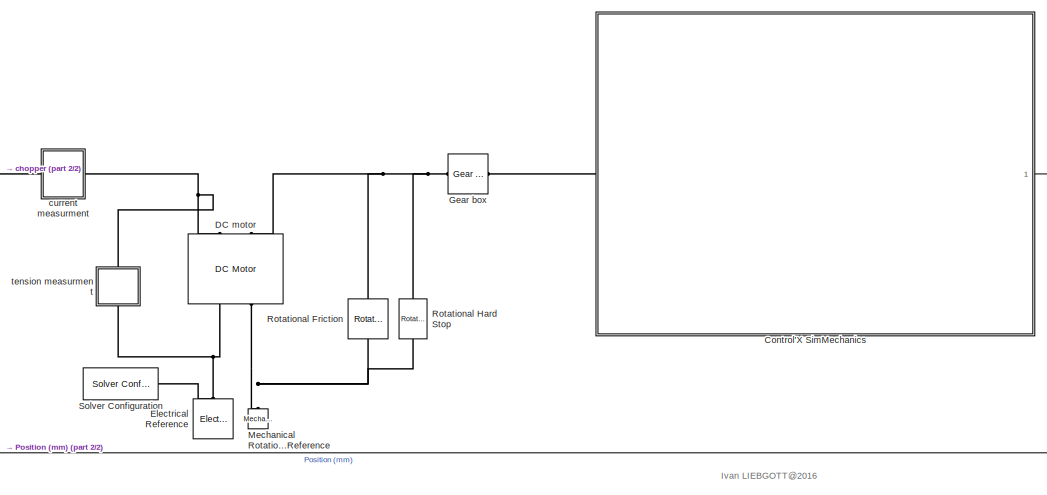
[diagram: root canvas - part 1/2, top center region]
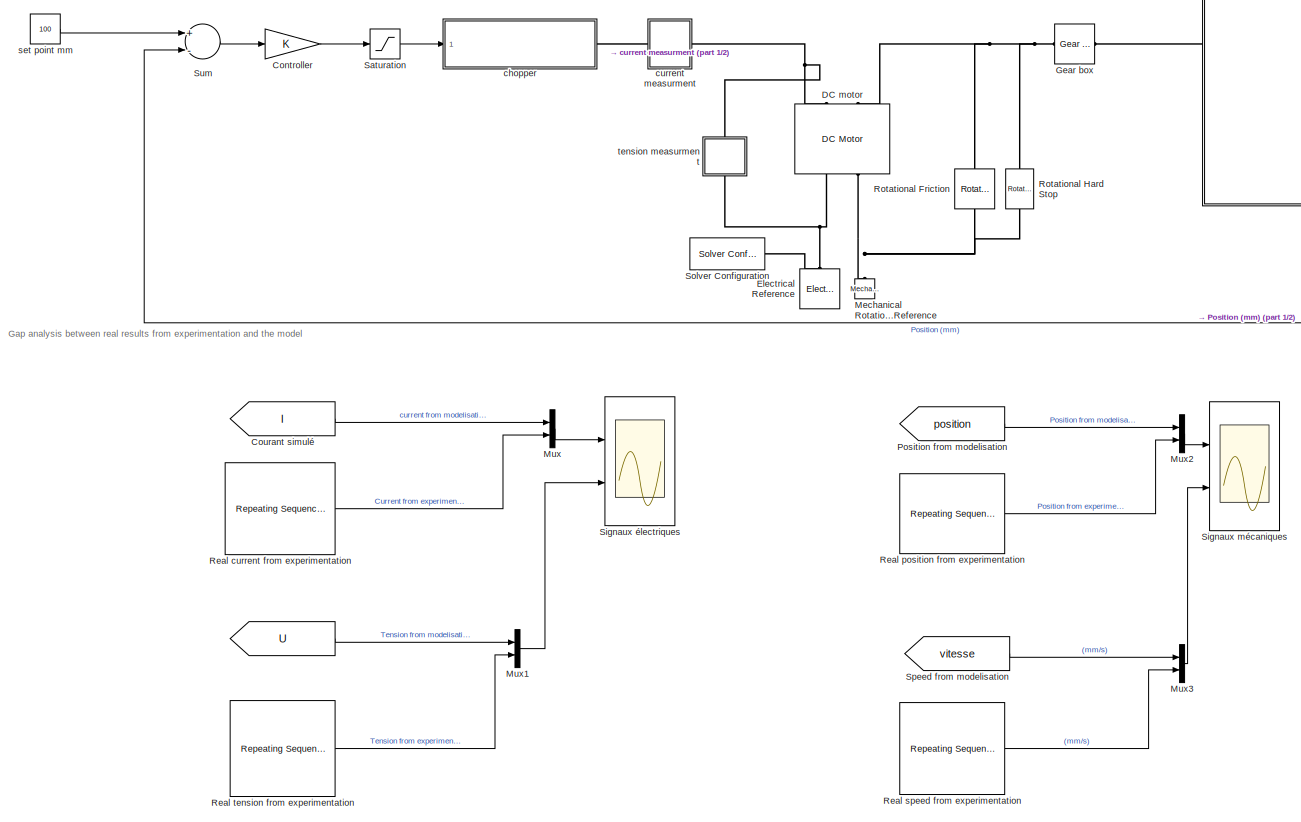
[diagram: root canvas - part 2/2, most of the canvas]
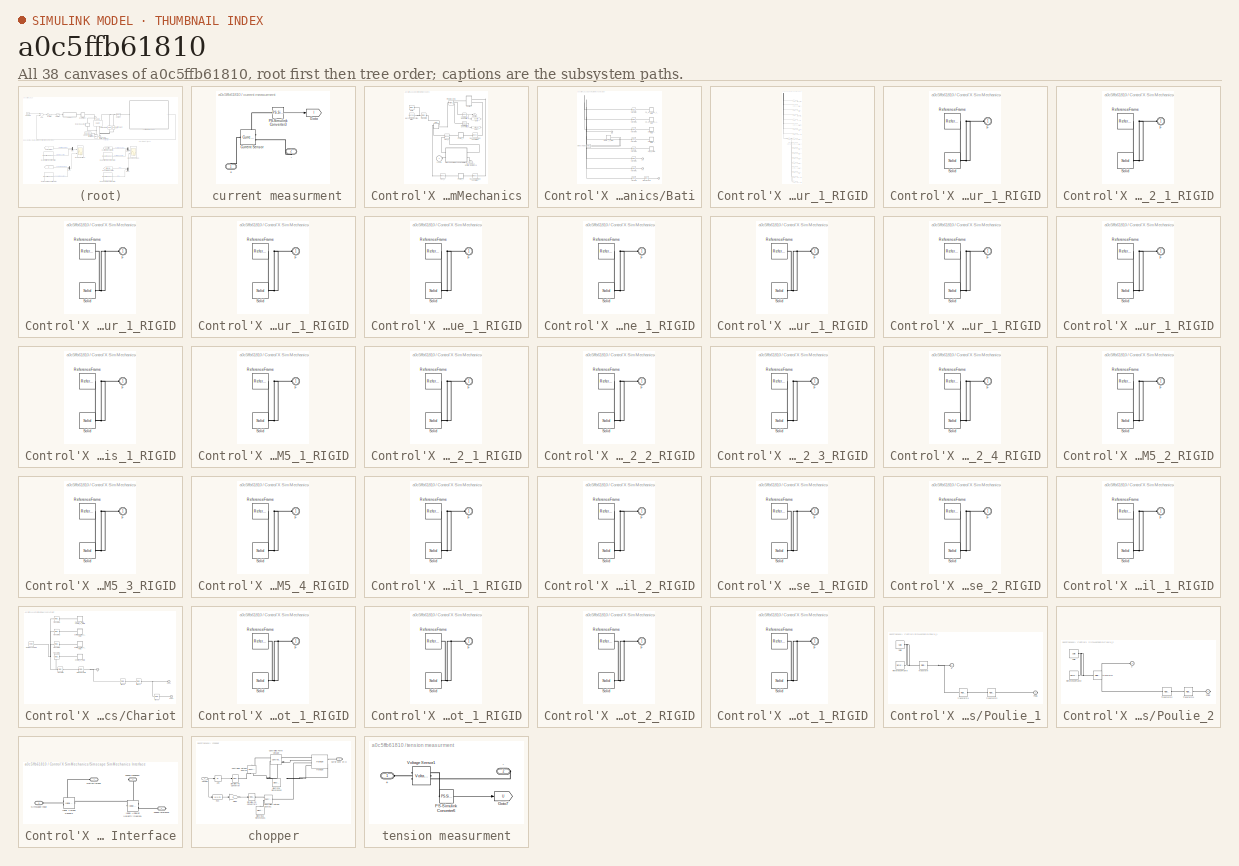
[diagram: thumbnail index - all 38 canvases of the model, root first then tree order]
MODEL slx_a0c5ffb61810
KIND model
CONFIG AbsTol = auto
CONFIG FixedStep = auto
CONFIG InitFcn = %Fichier de paramétrage Control'X\n\n\n%--------------------------------------------------------------  \n    clc %efface la fenêtre de commande\n    dt=1e-4; %Pas de temps du solveur discret utilisé et période d'échantillonnage en cas de pilotage temps réel\n\n%-------------------------------------------------------------- \n%On rapatrie ici les résultats d'un essai temporel en BF\n%Entrée indicielle d'am...<+1269ch>
CONFIG MaxStep = auto
CONFIG MinStep = auto
CONFIG RelTol = 1e-3
CONFIG SampleTimeConstraint = Unconstrained
CONFIG Solver = ode23t
CONFIG SolverMode = Auto
CONFIG SolverName = ode23t
CONFIG StartTime = 0.0
CONFIG StopTime = 0.2
BLOCK [From]  
  GotoTag = U
  TagVisibility = global
BLOCK [Reference]  DC motor  REF=elec_lib/Actuators & Drivers/Rotational Actuators/DC Motor
  Ports = [0, 0, 0, 0, 0, 2, 2]
  SourceBlock = elec_lib/Actuators & Drivers/Rotational Actuators/DC Motor
  SourceType = DC Motor
BLOCK [SubSystem]  current measurment
  Ports = [0, 0, 0, 0, 0, 1, 1]
  RequestExecContextInheritance = off
  Variant = off
BLOCK [PMIOPort]  current measurment/+
  Port = 1
  Side = Left
BLOCK [PMIOPort]  current measurment/-
  Port = 2
  Side = Right
BLOCK [Reference]  current measurment/Current Sensor  REF=fl_lib/Electrical/Electrical Sensors/Current Sensor
  Ports = [0, 0, 0, 0, 0, 1, 2]
  SourceBlock = fl_lib/Electrical/Electrical Sensors/Current Sensor
  SourceType = Current Sensor
BLOCK [Goto]  current measurment/Goto
  GotoTag = I
  TagVisibility = global
BLOCK [Reference]  current measurment/PS-Simulink Converter3  REF=nesl_utility/PS-Simulink
Converter
  Ports = [0, 1, 0, 0, 0, 1]
  SourceBlock = nesl_utility/PS-Simulink\nConverter
  SourceType = PS-Simulink\nConverter
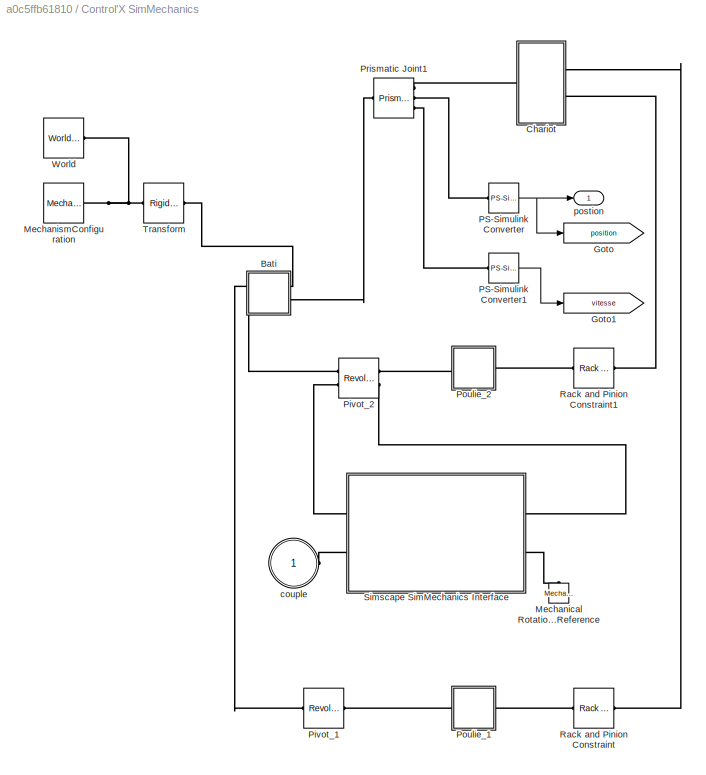
BLOCK [SubSystem] Control'X SimMechanics
  Ports = [0, 1, 0, 0, 0, 1]
  RequestExecContextInheritance = off
  Variant = off
BLOCK [SubSystem] Control'X SimMechanics/Bati
  Ports = [0, 0, 0, 0, 0, 2, 2]
  RequestExecContextInheritance = off
  Variant = off
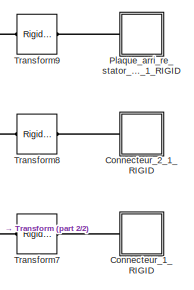
[diagram: Control'X SimMechanics/Bati/Ensemble_motorducteur_1_RIGID - part 1/2, top right region]
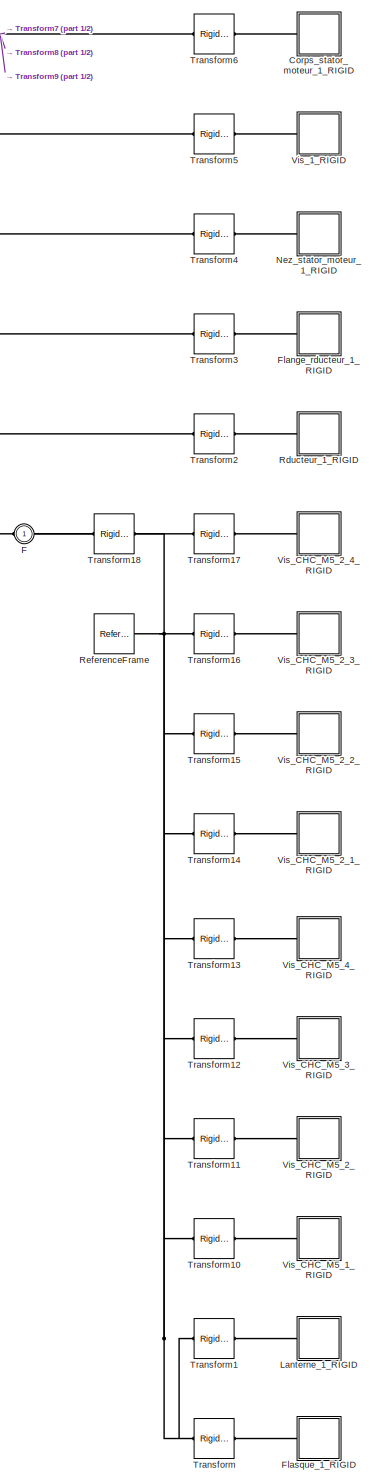
[diagram: Control'X SimMechanics/Bati/Ensemble_motorducteur_1_RIGID - part 2/2, most of the canvas]
BLOCK [SubSystem] Control'X SimMechanics/Bati/Ensemble_motorducteur_1_RIGID
  Ports = [0, 0, 0, 0, 0, 0, 1]
  RequestExecContextInheritance = off
  Variant = off
BLOCK [SubSystem] Control'X SimMechanics/Bati/Ensemble_motorducteur_1_RIGID/Connecteur_1_RIGID
  Ports = [0, 0, 0, 0, 0, 1]
  RequestExecContextInheritance = off
  Variant = off
BLOCK [PMIOPort] Control'X SimMechanics/Bati/Ensemble_motorducteur_1_RIGID/Connecteur_1_RIGID/F
  Port = 1
  Side = Left
BLOCK [Reference] Control'X SimMechanics/Bati/Ensemble_motorducteur_1_RIGID/Connecteur_1_RIGID/ReferenceFrame  REF=sm_lib/Frames and
Transforms/Reference
Frame
  Ports = [0, 0, 0, 0, 0, 0, 1]
  SourceBlock = sm_lib/Frames and\nTransforms/Reference\nFrame
  SourceType = Reference\nFrame
BLOCK [Reference] Control'X SimMechanics/Bati/Ensemble_motorducteur_1_RIGID/Connecteur_1_RIGID/Solid  REF=sm_lib/Body Elements/Solid
  Ports = [0, 0, 0, 0, 0, 0, 1]
  SourceBlock = sm_lib/Body Elements/Solid
  SourceType = Solid
BLOCK [SubSystem] Control'X SimMechanics/Bati/Ensemble_motorducteur_1_RIGID/Connecteur_2_1_RIGID
  Ports = [0, 0, 0, 0, 0, 1]
  RequestExecContextInheritance = off
  Variant = off
BLOCK [PMIOPort] Control'X SimMechanics/Bati/Ensemble_motorducteur_1_RIGID/Connecteur_2_1_RIGID/F
  Port = 1
  Side = Left
BLOCK [Reference] Control'X SimMechanics/Bati/Ensemble_motorducteur_1_RIGID/Connecteur_2_1_RIGID/ReferenceFrame  REF=sm_lib/Frames and
Transforms/Reference
Frame
  Ports = [0, 0, 0, 0, 0, 0, 1]
  SourceBlock = sm_lib/Frames and\nTransforms/Reference\nFrame
  SourceType = Reference\nFrame
BLOCK [Reference] Control'X SimMechanics/Bati/Ensemble_motorducteur_1_RIGID/Connecteur_2_1_RIGID/Solid  REF=sm_lib/Body Elements/Solid
  Ports = [0, 0, 0, 0, 0, 0, 1]
  SourceBlock = sm_lib/Body Elements/Solid
  SourceType = Solid
BLOCK [SubSystem] Control'X SimMechanics/Bati/Ensemble_motorducteur_1_RIGID/Corps_stator_moteur_1_RIGID
  Ports = [0, 0, 0, 0, 0, 1]
  RequestExecContextInheritance = off
  Variant = off
BLOCK [PMIOPort] Control'X SimMechanics/Bati/Ensemble_motorducteur_1_RIGID/Corps_stator_moteur_1_RIGID/F
  Port = 1
  Side = Left
BLOCK [Reference] Control'X SimMechanics/Bati/Ensemble_motorducteur_1_RIGID/Corps_stator_moteur_1_RIGID/ReferenceFrame  REF=sm_lib/Frames and
Transforms/Reference
Frame
  Ports = [0, 0, 0, 0, 0, 0, 1]
  SourceBlock = sm_lib/Frames and\nTransforms/Reference\nFrame
  SourceType = Reference\nFrame
BLOCK [Reference] Control'X SimMechanics/Bati/Ensemble_motorducteur_1_RIGID/Corps_stator_moteur_1_RIGID/Solid  REF=sm_lib/Body Elements/Solid
  Ports = [0, 0, 0, 0, 0, 0, 1]
  SourceBlock = sm_lib/Body Elements/Solid
  SourceType = Solid
BLOCK [PMIOPort] Control'X SimMechanics/Bati/Ensemble_motorducteur_1_RIGID/F
  Port = 1
  Side = Right
BLOCK [SubSystem] Control'X SimMechanics/Bati/Ensemble_motorducteur_1_RIGID/Flange_rducteur_1_RIGID
  Ports = [0, 0, 0, 0, 0, 1]
  RequestExecContextInheritance = off
  Variant = off
BLOCK [PMIOPort] Control'X SimMechanics/Bati/Ensemble_motorducteur_1_RIGID/Flange_rducteur_1_RIGID/F
  Port = 1
  Side = Left
BLOCK [Reference] Control'X SimMechanics/Bati/Ensemble_motorducteur_1_RIGID/Flange_rducteur_1_RIGID/ReferenceFrame  REF=sm_lib/Frames and
Transforms/Reference
Frame
  Ports = [0, 0, 0, 0, 0, 0, 1]
  SourceBlock = sm_lib/Frames and\nTransforms/Reference\nFrame
  SourceType = Reference\nFrame
BLOCK [Reference] Control'X SimMechanics/Bati/Ensemble_motorducteur_1_RIGID/Flange_rducteur_1_RIGID/Solid  REF=sm_lib/Body Elements/Solid
  Ports = [0, 0, 0, 0, 0, 0, 1]
  SourceBlock = sm_lib/Body Elements/Solid
  SourceType = Solid
BLOCK [SubSystem] Control'X SimMechanics/Bati/Ensemble_motorducteur_1_RIGID/Flasque_1_RIGID
  Ports = [0, 0, 0, 0, 0, 1]
  RequestExecContextInheritance = off
  Variant = off
BLOCK [PMIOPort] Control'X SimMechanics/Bati/Ensemble_motorducteur_1_RIGID/Flasque_1_RIGID/F
  Port = 1
  Side = Left
BLOCK [Reference] Control'X SimMechanics/Bati/Ensemble_motorducteur_1_RIGID/Flasque_1_RIGID/ReferenceFrame  REF=sm_lib/Frames and
Transforms/Reference
Frame
  Ports = [0, 0, 0, 0, 0, 0, 1]
  SourceBlock = sm_lib/Frames and\nTransforms/Reference\nFrame
  SourceType = Reference\nFrame
BLOCK [Reference] Control'X SimMechanics/Bati/Ensemble_motorducteur_1_RIGID/Flasque_1_RIGID/Solid  REF=sm_lib/Body Elements/Solid
  Ports = [0, 0, 0, 0, 0, 0, 1]
  SourceBlock = sm_lib/Body Elements/Solid
  SourceType = Solid
BLOCK [SubSystem] Control'X SimMechanics/Bati/Ensemble_motorducteur_1_RIGID/Lanterne_1_RIGID
  Ports = [0, 0, 0, 0, 0, 1]
  RequestExecContextInheritance = off
  Variant = off
BLOCK [PMIOPort] Control'X SimMechanics/Bati/Ensemble_motorducteur_1_RIGID/Lanterne_1_RIGID/F
  Port = 1
  Side = Left
BLOCK [Reference] Control'X SimMechanics/Bati/Ensemble_motorducteur_1_RIGID/Lanterne_1_RIGID/ReferenceFrame  REF=sm_lib/Frames and
Transforms/Reference
Frame
  Ports = [0, 0, 0, 0, 0, 0, 1]
  SourceBlock = sm_lib/Frames and\nTransforms/Reference\nFrame
  SourceType = Reference\nFrame
BLOCK [Reference] Control'X SimMechanics/Bati/Ensemble_motorducteur_1_RIGID/Lanterne_1_RIGID/Solid  REF=sm_lib/Body Elements/Solid
  Ports = [0, 0, 0, 0, 0, 0, 1]
  SourceBlock = sm_lib/Body Elements/Solid
  SourceType = Solid
BLOCK [SubSystem] Control'X SimMechanics/Bati/Ensemble_motorducteur_1_RIGID/Nez_stator_moteur_1_RIGID
  Ports = [0, 0, 0, 0, 0, 1]
  RequestExecContextInheritance = off
  Variant = off
BLOCK [PMIOPort] Control'X SimMechanics/Bati/Ensemble_motorducteur_1_RIGID/Nez_stator_moteur_1_RIGID/F
  Port = 1
  Side = Left
BLOCK [Reference] Control'X SimMechanics/Bati/Ensemble_motorducteur_1_RIGID/Nez_stator_moteur_1_RIGID/ReferenceFrame  REF=sm_lib/Frames and
Transforms/Reference
Frame
  Ports = [0, 0, 0, 0, 0, 0, 1]
  SourceBlock = sm_lib/Frames and\nTransforms/Reference\nFrame
  SourceType = Reference\nFrame
BLOCK [Reference] Control'X SimMechanics/Bati/Ensemble_motorducteur_1_RIGID/Nez_stator_moteur_1_RIGID/Solid  REF=sm_lib/Body Elements/Solid
  Ports = [0, 0, 0, 0, 0, 0, 1]
  SourceBlock = sm_lib/Body Elements/Solid
  SourceType = Solid
BLOCK [SubSystem] Control'X SimMechanics/Bati/Ensemble_motorducteur_1_RIGID/Plaque_arri_re_stator_moteur_1_RIGID
  Ports = [0, 0, 0, 0, 0, 1]
  RequestExecContextInheritance = off
  Variant = off
BLOCK [PMIOPort] Control'X SimMechanics/Bati/Ensemble_motorducteur_1_RIGID/Plaque_arri_re_stator_moteur_1_RIGID/F
  Port = 1
  Side = Left
BLOCK [Reference] Control'X SimMechanics/Bati/Ensemble_motorducteur_1_RIGID/Plaque_arri_re_stator_moteur_1_RIGID/ReferenceFrame  REF=sm_lib/Frames and
Transforms/Reference
Frame
  Ports = [0, 0, 0, 0, 0, 0, 1]
  SourceBlock = sm_lib/Frames and\nTransforms/Reference\nFrame
  SourceType = Reference\nFrame
BLOCK [Reference] Control'X SimMechanics/Bati/Ensemble_motorducteur_1_RIGID/Plaque_arri_re_stator_moteur_1_RIGID/Solid  REF=sm_lib/Body Elements/Solid
  Ports = [0, 0, 0, 0, 0, 0, 1]
  SourceBlock = sm_lib/Body Elements/Solid
  SourceType = Solid
BLOCK [SubSystem] Control'X SimMechanics/Bati/Ensemble_motorducteur_1_RIGID/Rducteur_1_RIGID
  Ports = [0, 0, 0, 0, 0, 1]
  RequestExecContextInheritance = off
  Variant = off
BLOCK [PMIOPort] Control'X SimMechanics/Bati/Ensemble_motorducteur_1_RIGID/Rducteur_1_RIGID/F
  Port = 1
  Side = Left
BLOCK [Reference] Control'X SimMechanics/Bati/Ensemble_motorducteur_1_RIGID/Rducteur_1_RIGID/ReferenceFrame  REF=sm_lib/Frames and
Transforms/Reference
Frame
  Ports = [0, 0, 0, 0, 0, 0, 1]
  SourceBlock = sm_lib/Frames and\nTransforms/Reference\nFrame
  SourceType = Reference\nFrame
BLOCK [Reference] Control'X SimMechanics/Bati/Ensemble_motorducteur_1_RIGID/Rducteur_1_RIGID/Solid  REF=sm_lib/Body Elements/Solid
  Ports = [0, 0, 0, 0, 0, 0, 1]
  SourceBlock = sm_lib/Body Elements/Solid
  SourceType = Solid
BLOCK [Reference] Control'X SimMechanics/Bati/Ensemble_motorducteur_1_RIGID/ReferenceFrame  REF=sm_lib/Frames and
Transforms/Reference
Frame
  Ports = [0, 0, 0, 0, 0, 0, 1]
  SourceBlock = sm_lib/Frames and\nTransforms/Reference\nFrame
  SourceType = Reference\nFrame
BLOCK [Reference] Control'X SimMechanics/Bati/Ensemble_motorducteur_1_RIGID/Transform  REF=sm_lib/Frames and
Transforms/Rigid
Transform
  Ports = [0, 0, 0, 0, 0, 1, 1]
  SourceBlock = sm_lib/Frames and\nTransforms/Rigid\nTransform
  SourceType = Rigid\nTransform
BLOCK [Reference] Control'X SimMechanics/Bati/Ensemble_motorducteur_1_RIGID/Transform1  REF=sm_lib/Frames and
Transforms/Rigid
Transform
  Ports = [0, 0, 0, 0, 0, 1, 1]
  SourceBlock = sm_lib/Frames and\nTransforms/Rigid\nTransform
  SourceType = Rigid\nTransform
BLOCK [Reference] Control'X SimMechanics/Bati/Ensemble_motorducteur_1_RIGID/Transform10  REF=sm_lib/Frames and
Transforms/Rigid
Transform
  Ports = [0, 0, 0, 0, 0, 1, 1]
  SourceBlock = sm_lib/Frames and\nTransforms/Rigid\nTransform
  SourceType = Rigid\nTransform
BLOCK [Reference] Control'X SimMechanics/Bati/Ensemble_motorducteur_1_RIGID/Transform11  REF=sm_lib/Frames and
Transforms/Rigid
Transform
  Ports = [0, 0, 0, 0, 0, 1, 1]
  SourceBlock = sm_lib/Frames and\nTransforms/Rigid\nTransform
  SourceType = Rigid\nTransform
BLOCK [Reference] Control'X SimMechanics/Bati/Ensemble_motorducteur_1_RIGID/Transform12  REF=sm_lib/Frames and
Transforms/Rigid
Transform
  Ports = [0, 0, 0, 0, 0, 1, 1]
  SourceBlock = sm_lib/Frames and\nTransforms/Rigid\nTransform
  SourceType = Rigid\nTransform
BLOCK [Reference] Control'X SimMechanics/Bati/Ensemble_motorducteur_1_RIGID/Transform13  REF=sm_lib/Frames and
Transforms/Rigid
Transform
  Ports = [0, 0, 0, 0, 0, 1, 1]
  SourceBlock = sm_lib/Frames and\nTransforms/Rigid\nTransform
  SourceType = Rigid\nTransform
BLOCK [Reference] Control'X SimMechanics/Bati/Ensemble_motorducteur_1_RIGID/Transform14  REF=sm_lib/Frames and
Transforms/Rigid
Transform
  Ports = [0, 0, 0, 0, 0, 1, 1]
  SourceBlock = sm_lib/Frames and\nTransforms/Rigid\nTransform
  SourceType = Rigid\nTransform
BLOCK [Reference] Control'X SimMechanics/Bati/Ensemble_motorducteur_1_RIGID/Transform15  REF=sm_lib/Frames and
Transforms/Rigid
Transform
  Ports = [0, 0, 0, 0, 0, 1, 1]
  SourceBlock = sm_lib/Frames and\nTransforms/Rigid\nTransform
  SourceType = Rigid\nTransform
BLOCK [Reference] Control'X SimMechanics/Bati/Ensemble_motorducteur_1_RIGID/Transform16  REF=sm_lib/Frames and
Transforms/Rigid
Transform
  Ports = [0, 0, 0, 0, 0, 1, 1]
  SourceBlock = sm_lib/Frames and\nTransforms/Rigid\nTransform
  SourceType = Rigid\nTransform
BLOCK [Reference] Control'X SimMechanics/Bati/Ensemble_motorducteur_1_RIGID/Transform17  REF=sm_lib/Frames and
Transforms/Rigid
Transform
  Ports = [0, 0, 0, 0, 0, 1, 1]
  SourceBlock = sm_lib/Frames and\nTransforms/Rigid\nTransform
  SourceType = Rigid\nTransform
BLOCK [Reference] Control'X SimMechanics/Bati/Ensemble_motorducteur_1_RIGID/Transform18  REF=sm_lib/Frames and
Transforms/Rigid
Transform
  Ports = [0, 0, 0, 0, 0, 1, 1]
  SourceBlock = sm_lib/Frames and\nTransforms/Rigid\nTransform
  SourceType = Rigid\nTransform
BLOCK [Reference] Control'X SimMechanics/Bati/Ensemble_motorducteur_1_RIGID/Transform2  REF=sm_lib/Frames and
Transforms/Rigid
Transform
  Ports = [0, 0, 0, 0, 0, 1, 1]
  SourceBlock = sm_lib/Frames and\nTransforms/Rigid\nTransform
  SourceType = Rigid\nTransform
BLOCK [Reference] Control'X SimMechanics/Bati/Ensemble_motorducteur_1_RIGID/Transform3  REF=sm_lib/Frames and
Transforms/Rigid
Transform
  Ports = [0, 0, 0, 0, 0, 1, 1]
  SourceBlock = sm_lib/Frames and\nTransforms/Rigid\nTransform
  SourceType = Rigid\nTransform
BLOCK [Reference] Control'X SimMechanics/Bati/Ensemble_motorducteur_1_RIGID/Transform4  REF=sm_lib/Frames and
Transforms/Rigid
Transform
  Ports = [0, 0, 0, 0, 0, 1, 1]
  SourceBlock = sm_lib/Frames and\nTransforms/Rigid\nTransform
  SourceType = Rigid\nTransform
BLOCK [Reference] Control'X SimMechanics/Bati/Ensemble_motorducteur_1_RIGID/Transform5  REF=sm_lib/Frames and
Transforms/Rigid
Transform
  Ports = [0, 0, 0, 0, 0, 1, 1]
  SourceBlock = sm_lib/Frames and\nTransforms/Rigid\nTransform
  SourceType = Rigid\nTransform
BLOCK [Reference] Control'X SimMechanics/Bati/Ensemble_motorducteur_1_RIGID/Transform6  REF=sm_lib/Frames and
Transforms/Rigid
Transform
  Ports = [0, 0, 0, 0, 0, 1, 1]
  SourceBlock = sm_lib/Frames and\nTransforms/Rigid\nTransform
  SourceType = Rigid\nTransform
BLOCK [Reference] Control'X SimMechanics/Bati/Ensemble_motorducteur_1_RIGID/Transform7  REF=sm_lib/Frames and
Transforms/Rigid
Transform
  Ports = [0, 0, 0, 0, 0, 1, 1]
  SourceBlock = sm_lib/Frames and\nTransforms/Rigid\nTransform
  SourceType = Rigid\nTransform
BLOCK [Reference] Control'X SimMechanics/Bati/Ensemble_motorducteur_1_RIGID/Transform8  REF=sm_lib/Frames and
Transforms/Rigid
Transform
  Ports = [0, 0, 0, 0, 0, 1, 1]
  SourceBlock = sm_lib/Frames and\nTransforms/Rigid\nTransform
  SourceType = Rigid\nTransform
BLOCK [Reference] Control'X SimMechanics/Bati/Ensemble_motorducteur_1_RIGID/Transform9  REF=sm_lib/Frames and
Transforms/Rigid
Transform
  Ports = [0, 0, 0, 0, 0, 1, 1]
  SourceBlock = sm_lib/Frames and\nTransforms/Rigid\nTransform
  SourceType = Rigid\nTransform
BLOCK [SubSystem] Control'X SimMechanics/Bati/Ensemble_motorducteur_1_RIGID/Vis_1_RIGID
  Ports = [0, 0, 0, 0, 0, 1]
  RequestExecContextInheritance = off
  Variant = off
BLOCK [PMIOPort] Control'X SimMechanics/Bati/Ensemble_motorducteur_1_RIGID/Vis_1_RIGID/F
  Port = 1
  Side = Left
BLOCK [Reference] Control'X SimMechanics/Bati/Ensemble_motorducteur_1_RIGID/Vis_1_RIGID/ReferenceFrame  REF=sm_lib/Frames and
Transforms/Reference
Frame
  Ports = [0, 0, 0, 0, 0, 0, 1]
  SourceBlock = sm_lib/Frames and\nTransforms/Reference\nFrame
  SourceType = Reference\nFrame
BLOCK [Reference] Control'X SimMechanics/Bati/Ensemble_motorducteur_1_RIGID/Vis_1_RIGID/Solid  REF=sm_lib/Body Elements/Solid
  Ports = [0, 0, 0, 0, 0, 0, 1]
  SourceBlock = sm_lib/Body Elements/Solid
  SourceType = Solid
BLOCK [SubSystem] Control'X SimMechanics/Bati/Ensemble_motorducteur_1_RIGID/Vis_CHC_M5_1_RIGID
  Ports = [0, 0, 0, 0, 0, 1]
  RequestExecContextInheritance = off
  Variant = off
BLOCK [PMIOPort] Control'X SimMechanics/Bati/Ensemble_motorducteur_1_RIGID/Vis_CHC_M5_1_RIGID/F
  Port = 1
  Side = Left
BLOCK [Reference] Control'X SimMechanics/Bati/Ensemble_motorducteur_1_RIGID/Vis_CHC_M5_1_RIGID/ReferenceFrame  REF=sm_lib/Frames and
Transforms/Reference
Frame
  Ports = [0, 0, 0, 0, 0, 0, 1]
  SourceBlock = sm_lib/Frames and\nTransforms/Reference\nFrame
  SourceType = Reference\nFrame
BLOCK [Reference] Control'X SimMechanics/Bati/Ensemble_motorducteur_1_RIGID/Vis_CHC_M5_1_RIGID/Solid  REF=sm_lib/Body Elements/Solid
  Ports = [0, 0, 0, 0, 0, 0, 1]
  SourceBlock = sm_lib/Body Elements/Solid
  SourceType = Solid
BLOCK [SubSystem] Control'X SimMechanics/Bati/Ensemble_motorducteur_1_RIGID/Vis_CHC_M5_2_1_RIGID
  Ports = [0, 0, 0, 0, 0, 1]
  RequestExecContextInheritance = off
  Variant = off
BLOCK [PMIOPort] Control'X SimMechanics/Bati/Ensemble_motorducteur_1_RIGID/Vis_CHC_M5_2_1_RIGID/F
  Port = 1
  Side = Left
BLOCK [Reference] Control'X SimMechanics/Bati/Ensemble_motorducteur_1_RIGID/Vis_CHC_M5_2_1_RIGID/ReferenceFrame  REF=sm_lib/Frames and
Transforms/Reference
Frame
  Ports = [0, 0, 0, 0, 0, 0, 1]
  SourceBlock = sm_lib/Frames and\nTransforms/Reference\nFrame
  SourceType = Reference\nFrame
BLOCK [Reference] Control'X SimMechanics/Bati/Ensemble_motorducteur_1_RIGID/Vis_CHC_M5_2_1_RIGID/Solid  REF=sm_lib/Body Elements/Solid
  Ports = [0, 0, 0, 0, 0, 0, 1]
  SourceBlock = sm_lib/Body Elements/Solid
  SourceType = Solid
BLOCK [SubSystem] Control'X SimMechanics/Bati/Ensemble_motorducteur_1_RIGID/Vis_CHC_M5_2_2_RIGID
  Ports = [0, 0, 0, 0, 0, 1]
  RequestExecContextInheritance = off
  Variant = off
BLOCK [PMIOPort] Control'X SimMechanics/Bati/Ensemble_motorducteur_1_RIGID/Vis_CHC_M5_2_2_RIGID/F
  Port = 1
  Side = Left
BLOCK [Reference] Control'X SimMechanics/Bati/Ensemble_motorducteur_1_RIGID/Vis_CHC_M5_2_2_RIGID/ReferenceFrame  REF=sm_lib/Frames and
Transforms/Reference
Frame
  Ports = [0, 0, 0, 0, 0, 0, 1]
  SourceBlock = sm_lib/Frames and\nTransforms/Reference\nFrame
  SourceType = Reference\nFrame
BLOCK [Reference] Control'X SimMechanics/Bati/Ensemble_motorducteur_1_RIGID/Vis_CHC_M5_2_2_RIGID/Solid  REF=sm_lib/Body Elements/Solid
  Ports = [0, 0, 0, 0, 0, 0, 1]
  SourceBlock = sm_lib/Body Elements/Solid
  SourceType = Solid
BLOCK [SubSystem] Control'X SimMechanics/Bati/Ensemble_motorducteur_1_RIGID/Vis_CHC_M5_2_3_RIGID
  Ports = [0, 0, 0, 0, 0, 1]
  RequestExecContextInheritance = off
  Variant = off
BLOCK [PMIOPort] Control'X SimMechanics/Bati/Ensemble_motorducteur_1_RIGID/Vis_CHC_M5_2_3_RIGID/F
  Port = 1
  Side = Left
BLOCK [Reference] Control'X SimMechanics/Bati/Ensemble_motorducteur_1_RIGID/Vis_CHC_M5_2_3_RIGID/ReferenceFrame  REF=sm_lib/Frames and
Transforms/Reference
Frame
  Ports = [0, 0, 0, 0, 0, 0, 1]
  SourceBlock = sm_lib/Frames and\nTransforms/Reference\nFrame
  SourceType = Reference\nFrame
BLOCK [Reference] Control'X SimMechanics/Bati/Ensemble_motorducteur_1_RIGID/Vis_CHC_M5_2_3_RIGID/Solid  REF=sm_lib/Body Elements/Solid
  Ports = [0, 0, 0, 0, 0, 0, 1]
  SourceBlock = sm_lib/Body Elements/Solid
  SourceType = Solid
BLOCK [SubSystem] Control'X SimMechanics/Bati/Ensemble_motorducteur_1_RIGID/Vis_CHC_M5_2_4_RIGID
  Ports = [0, 0, 0, 0, 0, 1]
  RequestExecContextInheritance = off
  Variant = off
BLOCK [PMIOPort] Control'X SimMechanics/Bati/Ensemble_motorducteur_1_RIGID/Vis_CHC_M5_2_4_RIGID/F
  Port = 1
  Side = Left
BLOCK [Reference] Control'X SimMechanics/Bati/Ensemble_motorducteur_1_RIGID/Vis_CHC_M5_2_4_RIGID/ReferenceFrame  REF=sm_lib/Frames and
Transforms/Reference
Frame
  Ports = [0, 0, 0, 0, 0, 0, 1]
  SourceBlock = sm_lib/Frames and\nTransforms/Reference\nFrame
  SourceType = Reference\nFrame
BLOCK [Reference] Control'X SimMechanics/Bati/Ensemble_motorducteur_1_RIGID/Vis_CHC_M5_2_4_RIGID/Solid  REF=sm_lib/Body Elements/Solid
  Ports = [0, 0, 0, 0, 0, 0, 1]
  SourceBlock = sm_lib/Body Elements/Solid
  SourceType = Solid
BLOCK [SubSystem] Control'X SimMechanics/Bati/Ensemble_motorducteur_1_RIGID/Vis_CHC_M5_2_RIGID
  Ports = [0, 0, 0, 0, 0, 1]
  RequestExecContextInheritance = off
  Variant = off
BLOCK [PMIOPort] Control'X SimMechanics/Bati/Ensemble_motorducteur_1_RIGID/Vis_CHC_M5_2_RIGID/F
  Port = 1
  Side = Left
BLOCK [Reference] Control'X SimMechanics/Bati/Ensemble_motorducteur_1_RIGID/Vis_CHC_M5_2_RIGID/ReferenceFrame  REF=sm_lib/Frames and
Transforms/Reference
Frame
  Ports = [0, 0, 0, 0, 0, 0, 1]
  SourceBlock = sm_lib/Frames and\nTransforms/Reference\nFrame
  SourceType = Reference\nFrame
BLOCK [Reference] Control'X SimMechanics/Bati/Ensemble_motorducteur_1_RIGID/Vis_CHC_M5_2_RIGID/Solid  REF=sm_lib/Body Elements/Solid
  Ports = [0, 0, 0, 0, 0, 0, 1]
  SourceBlock = sm_lib/Body Elements/Solid
  SourceType = Solid
BLOCK [SubSystem] Control'X SimMechanics/Bati/Ensemble_motorducteur_1_RIGID/Vis_CHC_M5_3_RIGID
  Ports = [0, 0, 0, 0, 0, 1]
  RequestExecContextInheritance = off
  Variant = off
BLOCK [PMIOPort] Control'X SimMechanics/Bati/Ensemble_motorducteur_1_RIGID/Vis_CHC_M5_3_RIGID/F
  Port = 1
  Side = Left
BLOCK [Reference] Control'X SimMechanics/Bati/Ensemble_motorducteur_1_RIGID/Vis_CHC_M5_3_RIGID/ReferenceFrame  REF=sm_lib/Frames and
Transforms/Reference
Frame
  Ports = [0, 0, 0, 0, 0, 0, 1]
  SourceBlock = sm_lib/Frames and\nTransforms/Reference\nFrame
  SourceType = Reference\nFrame
BLOCK [Reference] Control'X SimMechanics/Bati/Ensemble_motorducteur_1_RIGID/Vis_CHC_M5_3_RIGID/Solid  REF=sm_lib/Body Elements/Solid
  Ports = [0, 0, 0, 0, 0, 0, 1]
  SourceBlock = sm_lib/Body Elements/Solid
  SourceType = Solid
BLOCK [SubSystem] Control'X SimMechanics/Bati/Ensemble_motorducteur_1_RIGID/Vis_CHC_M5_4_RIGID
  Ports = [0, 0, 0, 0, 0, 1]
  RequestExecContextInheritance = off
  Variant = off
BLOCK [PMIOPort] Control'X SimMechanics/Bati/Ensemble_motorducteur_1_RIGID/Vis_CHC_M5_4_RIGID/F
  Port = 1
  Side = Left
BLOCK [Reference] Control'X SimMechanics/Bati/Ensemble_motorducteur_1_RIGID/Vis_CHC_M5_4_RIGID/ReferenceFrame  REF=sm_lib/Frames and
Transforms/Reference
Frame
  Ports = [0, 0, 0, 0, 0, 0, 1]
  SourceBlock = sm_lib/Frames and\nTransforms/Reference\nFrame
  SourceType = Reference\nFrame
BLOCK [Reference] Control'X SimMechanics/Bati/Ensemble_motorducteur_1_RIGID/Vis_CHC_M5_4_RIGID/Solid  REF=sm_lib/Body Elements/Solid
  Ports = [0, 0, 0, 0, 0, 0, 1]
  SourceBlock = sm_lib/Body Elements/Solid
  SourceType = Solid
BLOCK [SubSystem] Control'X SimMechanics/Bati/Extrmit_rail_1_RIGID
  Ports = [0, 0, 0, 0, 0, 1]
  RequestExecContextInheritance = off
  Variant = off
BLOCK [PMIOPort] Control'X SimMechanics/Bati/Extrmit_rail_1_RIGID/F
  Port = 1
  Side = Left
BLOCK [Reference] Control'X SimMechanics/Bati/Extrmit_rail_1_RIGID/ReferenceFrame  REF=sm_lib/Frames and
Transforms/Reference
Frame
  Ports = [0, 0, 0, 0, 0, 0, 1]
  SourceBlock = sm_lib/Frames and\nTransforms/Reference\nFrame
  SourceType = Reference\nFrame
BLOCK [Reference] Control'X SimMechanics/Bati/Extrmit_rail_1_RIGID/Solid  REF=sm_lib/Body Elements/Solid
  Ports = [0, 0, 0, 0, 0, 0, 1]
  SourceBlock = sm_lib/Body Elements/Solid
  SourceType = Solid
BLOCK [SubSystem] Control'X SimMechanics/Bati/Extrmit_rail_2_RIGID
  Ports = [0, 0, 0, 0, 0, 1]
  RequestExecContextInheritance = off
  Variant = off
BLOCK [PMIOPort] Control'X SimMechanics/Bati/Extrmit_rail_2_RIGID/F
  Port = 1
  Side = Left
BLOCK [Reference] Control'X SimMechanics/Bati/Extrmit_rail_2_RIGID/ReferenceFrame  REF=sm_lib/Frames and
Transforms/Reference
Frame
  Ports = [0, 0, 0, 0, 0, 0, 1]
  SourceBlock = sm_lib/Frames and\nTransforms/Reference\nFrame
  SourceType = Reference\nFrame
BLOCK [Reference] Control'X SimMechanics/Bati/Extrmit_rail_2_RIGID/Solid  REF=sm_lib/Body Elements/Solid
  Ports = [0, 0, 0, 0, 0, 0, 1]
  SourceBlock = sm_lib/Body Elements/Solid
  SourceType = Solid
BLOCK [PMIOPort] Control'X SimMechanics/Bati/F
  Port = 2
  Side = Left
BLOCK [PMIOPort] Control'X SimMechanics/Bati/F1
  Port = 4
  Side = Right
BLOCK [PMIOPort] Control'X SimMechanics/Bati/F2
  Port = 3
  Side = Right
BLOCK [PMIOPort] Control'X SimMechanics/Bati/F3
  Port = 1
  Side = Left
BLOCK [SubSystem] Control'X SimMechanics/Bati/Fin_de_course_1_RIGID
  Ports = [0, 0, 0, 0, 0, 1]
  RequestExecContextInheritance = off
  Variant = off
BLOCK [PMIOPort] Control'X SimMechanics/Bati/Fin_de_course_1_RIGID/F
  Port = 1
  Side = Left
BLOCK [Reference] Control'X SimMechanics/Bati/Fin_de_course_1_RIGID/ReferenceFrame  REF=sm_lib/Frames and
Transforms/Reference
Frame
  Ports = [0, 0, 0, 0, 0, 0, 1]
  SourceBlock = sm_lib/Frames and\nTransforms/Reference\nFrame
  SourceType = Reference\nFrame
BLOCK [Reference] Control'X SimMechanics/Bati/Fin_de_course_1_RIGID/Solid  REF=sm_lib/Body Elements/Solid
  Ports = [0, 0, 0, 0, 0, 0, 1]
  SourceBlock = sm_lib/Body Elements/Solid
  SourceType = Solid
BLOCK [SubSystem] Control'X SimMechanics/Bati/Fin_de_course_2_RIGID
  Ports = [0, 0, 0, 0, 0, 1]
  RequestExecContextInheritance = off
  Variant = off
BLOCK [PMIOPort] Control'X SimMechanics/Bati/Fin_de_course_2_RIGID/F
  Port = 1
  Side = Left
BLOCK [Reference] Control'X SimMechanics/Bati/Fin_de_course_2_RIGID/ReferenceFrame  REF=sm_lib/Frames and
Transforms/Reference
Frame
  Ports = [0, 0, 0, 0, 0, 0, 1]
  SourceBlock = sm_lib/Frames and\nTransforms/Reference\nFrame
  SourceType = Reference\nFrame
BLOCK [Reference] Control'X SimMechanics/Bati/Fin_de_course_2_RIGID/Solid  REF=sm_lib/Body Elements/Solid
  Ports = [0, 0, 0, 0, 0, 0, 1]
  SourceBlock = sm_lib/Body Elements/Solid
  SourceType = Solid
BLOCK [SubSystem] Control'X SimMechanics/Bati/Rail_1_RIGID
  Ports = [0, 0, 0, 0, 0, 1]
  RequestExecContextInheritance = off
  Variant = off
BLOCK [PMIOPort] Control'X SimMechanics/Bati/Rail_1_RIGID/F
  Port = 1
  Side = Left
BLOCK [Reference] Control'X SimMechanics/Bati/Rail_1_RIGID/ReferenceFrame  REF=sm_lib/Frames and
Transforms/Reference
Frame
  Ports = [0, 0, 0, 0, 0, 0, 1]
  SourceBlock = sm_lib/Frames and\nTransforms/Reference\nFrame
  SourceType = Reference\nFrame
BLOCK [Reference] Control'X SimMechanics/Bati/Rail_1_RIGID/Solid  REF=sm_lib/Body Elements/Solid
  Ports = [0, 0, 0, 0, 0, 0, 1]
  SourceBlock = sm_lib/Body Elements/Solid
  SourceType = Solid
BLOCK [Reference] Control'X SimMechanics/Bati/ReferenceFrame  REF=sm_lib/Frames and
Transforms/Reference
Frame
  Ports = [0, 0, 0, 0, 0, 0, 1]
  SourceBlock = sm_lib/Frames and\nTransforms/Reference\nFrame
  SourceType = Reference\nFrame
BLOCK [Reference] Control'X SimMechanics/Bati/Rigid Transform  REF=sm_lib/Frames and
Transforms/Rigid
Transform
  Ports = [0, 0, 0, 0, 0, 1, 1]
  SourceBlock = sm_lib/Frames and\nTransforms/Rigid\nTransform
  SourceType = Rigid\nTransform
BLOCK [Reference] Control'X SimMechanics/Bati/Transform  REF=sm_lib/Frames and
Transforms/Rigid
Transform
  Ports = [0, 0, 0, 0, 0, 1, 1]
  SourceBlock = sm_lib/Frames and\nTransforms/Rigid\nTransform
  SourceType = Rigid\nTransform
BLOCK [Reference] Control'X SimMechanics/Bati/Transform1  REF=sm_lib/Frames and
Transforms/Rigid
Transform
  Ports = [0, 0, 0, 0, 0, 1, 1]
  SourceBlock = sm_lib/Frames and\nTransforms/Rigid\nTransform
  SourceType = Rigid\nTransform
BLOCK [Reference] Control'X SimMechanics/Bati/Transform2  REF=sm_lib/Frames and
Transforms/Rigid
Transform
  Ports = [0, 0, 0, 0, 0, 1, 1]
  SourceBlock = sm_lib/Frames and\nTransforms/Rigid\nTransform
  SourceType = Rigid\nTransform
BLOCK [Reference] Control'X SimMechanics/Bati/Transform3  REF=sm_lib/Frames and
Transforms/Rigid
Transform
  Ports = [0, 0, 0, 0, 0, 1, 1]
  SourceBlock = sm_lib/Frames and\nTransforms/Rigid\nTransform
  SourceType = Rigid\nTransform
BLOCK [Reference] Control'X SimMechanics/Bati/Transform4  REF=sm_lib/Frames and
Transforms/Rigid
Transform
  Ports = [0, 0, 0, 0, 0, 1, 1]
  SourceBlock = sm_lib/Frames and\nTransforms/Rigid\nTransform
  SourceType = Rigid\nTransform
BLOCK [Reference] Control'X SimMechanics/Bati/Transform5  REF=sm_lib/Frames and
Transforms/Rigid
Transform
  Ports = [0, 0, 0, 0, 0, 1, 1]
  SourceBlock = sm_lib/Frames and\nTransforms/Rigid\nTransform
  SourceType = Rigid\nTransform
BLOCK [Reference] Control'X SimMechanics/Bati/Transform6  REF=sm_lib/Frames and
Transforms/Rigid
Transform
  Ports = [0, 0, 0, 0, 0, 1, 1]
  SourceBlock = sm_lib/Frames and\nTransforms/Rigid\nTransform
  SourceType = Rigid\nTransform
BLOCK [Reference] Control'X SimMechanics/Bati/Transform7  REF=sm_lib/Frames and
Transforms/Rigid
Transform
  Ports = [0, 0, 0, 0, 0, 1, 1]
  SourceBlock = sm_lib/Frames and\nTransforms/Rigid\nTransform
  SourceType = Rigid\nTransform
BLOCK [SubSystem] Control'X SimMechanics/Chariot
  Ports = [0, 0, 0, 0, 0, 2, 1]
  RequestExecContextInheritance = off
  Variant = off
BLOCK [SubSystem] Control'X SimMechanics/Chariot/Chariot_1_RIGID
  Ports = [0, 0, 0, 0, 0, 1]
  RequestExecContextInheritance = off
  Variant = off
BLOCK [PMIOPort] Control'X SimMechanics/Chariot/Chariot_1_RIGID/F
  Port = 1
  Side = Left
BLOCK [Reference] Control'X SimMechanics/Chariot/Chariot_1_RIGID/ReferenceFrame  REF=sm_lib/Frames and
Transforms/Reference
Frame
  Ports = [0, 0, 0, 0, 0, 0, 1]
  SourceBlock = sm_lib/Frames and\nTransforms/Reference\nFrame
  SourceType = Reference\nFrame
BLOCK [Reference] Control'X SimMechanics/Chariot/Chariot_1_RIGID/Solid  REF=sm_lib/Body Elements/Solid
  Ports = [0, 0, 0, 0, 0, 0, 1]
  SourceBlock = sm_lib/Body Elements/Solid
  SourceType = Solid
BLOCK [SubSystem] Control'X SimMechanics/Chariot/Extrmit_chariot_1_RIGID
  Ports = [0, 0, 0, 0, 0, 1]
  RequestExecContextInheritance = off
  Variant = off
BLOCK [PMIOPort] Control'X SimMechanics/Chariot/Extrmit_chariot_1_RIGID/F
  Port = 1
  Side = Left
BLOCK [Reference] Control'X SimMechanics/Chariot/Extrmit_chariot_1_RIGID/ReferenceFrame  REF=sm_lib/Frames and
Transforms/Reference
Frame
  Ports = [0, 0, 0, 0, 0, 0, 1]
  SourceBlock = sm_lib/Frames and\nTransforms/Reference\nFrame
  SourceType = Reference\nFrame
BLOCK [Reference] Control'X SimMechanics/Chariot/Extrmit_chariot_1_RIGID/Solid  REF=sm_lib/Body Elements/Solid
  Ports = [0, 0, 0, 0, 0, 0, 1]
  SourceBlock = sm_lib/Body Elements/Solid
  SourceType = Solid
BLOCK [SubSystem] Control'X SimMechanics/Chariot/Extrmit_chariot_2_RIGID
  Ports = [0, 0, 0, 0, 0, 1]
  RequestExecContextInheritance = off
  Variant = off
BLOCK [PMIOPort] Control'X SimMechanics/Chariot/Extrmit_chariot_2_RIGID/F
  Port = 1
  Side = Left
BLOCK [Reference] Control'X SimMechanics/Chariot/Extrmit_chariot_2_RIGID/ReferenceFrame  REF=sm_lib/Frames and
Transforms/Reference
Frame
  Ports = [0, 0, 0, 0, 0, 0, 1]
  SourceBlock = sm_lib/Frames and\nTransforms/Reference\nFrame
  SourceType = Reference\nFrame
BLOCK [Reference] Control'X SimMechanics/Chariot/Extrmit_chariot_2_RIGID/Solid  REF=sm_lib/Body Elements/Solid
  Ports = [0, 0, 0, 0, 0, 0, 1]
  SourceBlock = sm_lib/Body Elements/Solid
  SourceType = Solid
BLOCK [PMIOPort] Control'X SimMechanics/Chariot/F
  Port = 1
  Side = Right
BLOCK [PMIOPort] Control'X SimMechanics/Chariot/PCF1
  Port = 2
  Side = Left
BLOCK [PMIOPort] Control'X SimMechanics/Chariot/PCF2
  Port = 3
  Side = Left
BLOCK [SubSystem] Control'X SimMechanics/Chariot/Plaque_latrale_chariot_1_RIGID
  Ports = [0, 0, 0, 0, 0, 1]
  RequestExecContextInheritance = off
  Variant = off
BLOCK [PMIOPort] Control'X SimMechanics/Chariot/Plaque_latrale_chariot_1_RIGID/F
  Port = 1
  Side = Left
BLOCK [Reference] Control'X SimMechanics/Chariot/Plaque_latrale_chariot_1_RIGID/ReferenceFrame  REF=sm_lib/Frames and
Transforms/Reference
Frame
  Ports = [0, 0, 0, 0, 0, 0, 1]
  SourceBlock = sm_lib/Frames and\nTransforms/Reference\nFrame
  SourceType = Reference\nFrame
BLOCK [Reference] Control'X SimMechanics/Chariot/Plaque_latrale_chariot_1_RIGID/Solid  REF=sm_lib/Body Elements/Solid
  Ports = [0, 0, 0, 0, 0, 0, 1]
  SourceBlock = sm_lib/Body Elements/Solid
  SourceType = Solid
BLOCK [Reference] Control'X SimMechanics/Chariot/ReferenceFrame  REF=sm_lib/Frames and
Transforms/Reference
Frame
  Ports = [0, 0, 0, 0, 0, 0, 1]
  SourceBlock = sm_lib/Frames and\nTransforms/Reference\nFrame
  SourceType = Reference\nFrame
BLOCK [Reference] Control'X SimMechanics/Chariot/Rigid Transform  REF=sm_lib/Frames and
Transforms/Rigid
Transform
  Ports = [0, 0, 0, 0, 0, 1, 1]
  SourceBlock = sm_lib/Frames and\nTransforms/Rigid\nTransform
  SourceType = Rigid\nTransform
BLOCK [Reference] Control'X SimMechanics/Chariot/Transform  REF=sm_lib/Frames and
Transforms/Rigid
Transform
  Ports = [0, 0, 0, 0, 0, 1, 1]
  SourceBlock = sm_lib/Frames and\nTransforms/Rigid\nTransform
  SourceType = Rigid\nTransform
BLOCK [Reference] Control'X SimMechanics/Chariot/Transform1  REF=sm_lib/Frames and
Transforms/Rigid
Transform
  Ports = [0, 0, 0, 0, 0, 1, 1]
  SourceBlock = sm_lib/Frames and\nTransforms/Rigid\nTransform
  SourceType = Rigid\nTransform
BLOCK [Reference] Control'X SimMechanics/Chariot/Transform2  REF=sm_lib/Frames and
Transforms/Rigid
Transform
  Ports = [0, 0, 0, 0, 0, 1, 1]
  SourceBlock = sm_lib/Frames and\nTransforms/Rigid\nTransform
  SourceType = Rigid\nTransform
BLOCK [Reference] Control'X SimMechanics/Chariot/Transform3  REF=sm_lib/Frames and
Transforms/Rigid
Transform
  Ports = [0, 0, 0, 0, 0, 1, 1]
  SourceBlock = sm_lib/Frames and\nTransforms/Rigid\nTransform
  SourceType = Rigid\nTransform
BLOCK [Reference] Control'X SimMechanics/Chariot/Transform4  REF=sm_lib/Frames and
Transforms/Rigid
Transform
  Ports = [0, 0, 0, 0, 0, 1, 1]
  SourceBlock = sm_lib/Frames and\nTransforms/Rigid\nTransform
  SourceType = Rigid\nTransform
BLOCK [Reference] Control'X SimMechanics/Chariot/trans6  REF=sm_lib/Frames and
Transforms/Rigid
Transform
  Ports = [0, 0, 0, 0, 0, 1, 1]
  SourceBlock = sm_lib/Frames and\nTransforms/Rigid\nTransform
  SourceType = Rigid\nTransform
BLOCK [Reference] Control'X SimMechanics/Chariot/trans7  REF=sm_lib/Frames and
Transforms/Rigid
Transform
  Ports = [0, 0, 0, 0, 0, 1, 1]
  SourceBlock = sm_lib/Frames and\nTransforms/Rigid\nTransform
  SourceType = Rigid\nTransform
BLOCK [Reference] Control'X SimMechanics/Chariot/trans8  REF=sm_lib/Frames and
Transforms/Rigid
Transform
  Ports = [0, 0, 0, 0, 0, 1, 1]
  SourceBlock = sm_lib/Frames and\nTransforms/Rigid\nTransform
  SourceType = Rigid\nTransform
BLOCK [Goto] Control'X SimMechanics/Goto
  GotoTag = position
  TagVisibility = global
BLOCK [Goto] Control'X SimMechanics/Goto1
  GotoTag = vitesse
  TagVisibility = global
BLOCK [Reference] Control'X SimMechanics/Mechanical Rotational Reference  REF=fl_lib/Mechanical/Rotational Elements/Mechanical
Rotational Reference
  Ports = [0, 0, 0, 0, 0, 1]
  SourceBlock = fl_lib/Mechanical/Rotational Elements/Mechanical\nRotational Reference
  SourceType = Mechanical\nRotational Reference
BLOCK [Reference] Control'X SimMechanics/MechanismConfiguration  REF=sm_lib/Utilities/Mechanism
Configuration
  Ports = [0, 0, 0, 0, 0, 0, 1]
  SourceBlock = sm_lib/Utilities/Mechanism\nConfiguration
  SourceType = Mechanism\nConfiguration
BLOCK [Reference] Control'X SimMechanics/PS-Simulink Converter  REF=nesl_utility/PS-Simulink
Converter
  Ports = [0, 1, 0, 0, 0, 1]
  SourceBlock = nesl_utility/PS-Simulink\nConverter
  SourceType = PS-Simulink\nConverter
BLOCK [Reference] Control'X SimMechanics/PS-Simulink Converter1  REF=nesl_utility/PS-Simulink
Converter
  Ports = [0, 1, 0, 0, 0, 1]
  SourceBlock = nesl_utility/PS-Simulink\nConverter
  SourceType = PS-Simulink\nConverter
BLOCK [Reference] Control'X SimMechanics/Pivot_1  REF=sm_lib/Joints/Revolute Joint
  Ports = [0, 0, 0, 0, 0, 1, 1]
  SourceBlock = sm_lib/Joints/Revolute Joint
  SourceType = Revolute Joint
BLOCK [Reference] Control'X SimMechanics/Pivot_2  REF=sm_lib/Joints/Revolute Joint
  Ports = [0, 0, 0, 0, 0, 2, 2]
  SourceBlock = sm_lib/Joints/Revolute Joint
  SourceType = Revolute Joint
BLOCK [SubSystem] Control'X SimMechanics/Poulie_1
  Ports = [0, 0, 0, 0, 0, 1, 1]
  RequestExecContextInheritance = off
  Variant = off
BLOCK [PMIOPort] Control'X SimMechanics/Poulie_1/F
  Port = 1
  Side = Left
BLOCK [PMIOPort] Control'X SimMechanics/Poulie_1/PCB1
  Port = 2
  Side = Right
BLOCK [Reference] Control'X SimMechanics/Poulie_1/ReferenceFrame  REF=sm_lib/Frames and
Transforms/Reference
Frame
  Ports = [0, 0, 0, 0, 0, 0, 1]
  SourceBlock = sm_lib/Frames and\nTransforms/Reference\nFrame
  SourceType = Reference\nFrame
BLOCK [Reference] Control'X SimMechanics/Poulie_1/Solid  REF=sm_lib/Body Elements/Solid
  Ports = [0, 0, 0, 0, 0, 0, 1]
  SourceBlock = sm_lib/Body Elements/Solid
  SourceType = Solid
BLOCK [Reference] Control'X SimMechanics/Poulie_1/Transform  REF=sm_lib/Frames and
Transforms/Rigid
Transform
  Ports = [0, 0, 0, 0, 0, 1, 1]
  SourceBlock = sm_lib/Frames and\nTransforms/Rigid\nTransform
  SourceType = Rigid\nTransform
BLOCK [Reference] Control'X SimMechanics/Poulie_1/transform1  REF=sm_lib/Frames and
Transforms/Rigid
Transform
  Ports = [0, 0, 0, 0, 0, 1, 1]
  SourceBlock = sm_lib/Frames and\nTransforms/Rigid\nTransform
  SourceType = Rigid\nTransform
BLOCK [Reference] Control'X SimMechanics/Poulie_1/transform2  REF=sm_lib/Frames and
Transforms/Rigid
Transform
  Ports = [0, 0, 0, 0, 0, 1, 1]
  SourceBlock = sm_lib/Frames and\nTransforms/Rigid\nTransform
  SourceType = Rigid\nTransform
BLOCK [SubSystem] Control'X SimMechanics/Poulie_2
  Ports = [0, 0, 0, 0, 0, 1, 1]
  RequestExecContextInheritance = off
  Variant = off
BLOCK [PMIOPort] Control'X SimMechanics/Poulie_2/F
  Port = 1
  Side = Left
BLOCK [PMIOPort] Control'X SimMechanics/Poulie_2/PCB2
  Port = 2
  Side = Right
BLOCK [Reference] Control'X SimMechanics/Poulie_2/ReferenceFrame  REF=sm_lib/Frames and
Transforms/Reference
Frame
  Ports = [0, 0, 0, 0, 0, 0, 1]
  SourceBlock = sm_lib/Frames and\nTransforms/Reference\nFrame
  SourceType = Reference\nFrame
BLOCK [Reference] Control'X SimMechanics/Poulie_2/Solid  REF=sm_lib/Body Elements/Solid
  Ports = [0, 0, 0, 0, 0, 0, 1]
  SourceBlock = sm_lib/Body Elements/Solid
  SourceType = Solid
BLOCK [Reference] Control'X SimMechanics/Poulie_2/Transform  REF=sm_lib/Frames and
Transforms/Rigid
Transform
  Ports = [0, 0, 0, 0, 0, 1, 1]
  SourceBlock = sm_lib/Frames and\nTransforms/Rigid\nTransform
  SourceType = Rigid\nTransform
BLOCK [Reference] Control'X SimMechanics/Poulie_2/Transform1  REF=sm_lib/Frames and
Transforms/Rigid
Transform
  Ports = [0, 0, 0, 0, 0, 1, 1]
  SourceBlock = sm_lib/Frames and\nTransforms/Rigid\nTransform
  SourceType = Rigid\nTransform
BLOCK [Reference] Control'X SimMechanics/Poulie_2/Transform2  REF=sm_lib/Frames and
Transforms/Rigid
Transform
  Ports = [0, 0, 0, 0, 0, 1, 1]
  SourceBlock = sm_lib/Frames and\nTransforms/Rigid\nTransform
  SourceType = Rigid\nTransform
BLOCK [Reference] Control'X SimMechanics/Prismatic Joint1  REF=sm_lib/Joints/Prismatic
Joint
  Ports = [0, 0, 0, 0, 0, 1, 3]
  SourceBlock = sm_lib/Joints/Prismatic\nJoint
  SourceType = Prismatic\nJoint
BLOCK [Reference] Control'X SimMechanics/Rack and Pinion Constraint  REF=sm_lib/Gears and
Couplings/Gears/Rack and Pinion
Constraint
  Ports = [0, 0, 0, 0, 0, 1, 1]
  SourceBlock = sm_lib/Gears and\nCouplings/Gears/Rack and Pinion\nConstraint
  SourceType = Rack and Pinion\nConstraint
BLOCK [Reference] Control'X SimMechanics/Rack and Pinion Constraint1  REF=sm_lib/Gears and
Couplings/Gears/Rack and Pinion
Constraint
  Ports = [0, 0, 0, 0, 0, 1, 1]
  SourceBlock = sm_lib/Gears and\nCouplings/Gears/Rack and Pinion\nConstraint
  SourceType = Rack and Pinion\nConstraint
BLOCK [SubSystem] Control'X SimMechanics/Simscape SimMechanics Interface
  Ports = [0, 0, 0, 0, 0, 2, 2]
  RequestExecContextInheritance = off
  Variant = off
BLOCK [PMIOPort] Control'X SimMechanics/Simscape SimMechanics Interface/ Simscape input
  Port = 3
  Side = Left
BLOCK [PMIOPort] Control'X SimMechanics/Simscape SimMechanics Interface/ speed feedback
  Port = 2
  Side = Right
BLOCK [Reference] Control'X SimMechanics/Simscape SimMechanics Interface/Ideal Angular Velocity Source1  REF=fl_lib/Mechanical/Mechanical Sources/Ideal Angular
Velocity Source
  Ports = [0, 0, 0, 0, 0, 1, 2]
  SourceBlock = fl_lib/Mechanical/Mechanical Sources/Ideal Angular\nVelocity Source
  SourceType = Ideal Angular\nVelocity Source
BLOCK [Reference] Control'X SimMechanics/Simscape SimMechanics Interface/Ideal Torque Sensor1  REF=fl_lib/Mechanical/Mechanical Sensors/Ideal Torque Sensor
  Ports = [0, 0, 0, 0, 0, 1, 2]
  SourceBlock = fl_lib/Mechanical/Mechanical Sensors/Ideal Torque Sensor
  SourceType = Ideal Torque Sensor
BLOCK [PMIOPort] Control'X SimMechanics/Simscape SimMechanics Interface/motion torque
  Port = 1
  Side = Left
BLOCK [PMIOPort] Control'X SimMechanics/Simscape SimMechanics Interface/speed reference 
  Port = 4
  Side = Right
BLOCK [Reference] Control'X SimMechanics/Transform  REF=sm_lib/Frames and
Transforms/Rigid
Transform
  Ports = [0, 0, 0, 0, 0, 1, 1]
  SourceBlock = sm_lib/Frames and\nTransforms/Rigid\nTransform
  SourceType = Rigid\nTransform
BLOCK [Reference] Control'X SimMechanics/World  REF=sm_lib/Frames and
Transforms/World Frame
  Ports = [0, 0, 0, 0, 0, 0, 1]
  SourceBlock = sm_lib/Frames and\nTransforms/World Frame
  SourceType = World Frame
BLOCK [PMIOPort] Control'X SimMechanics/couple
  Port = 1
  Side = Left
BLOCK [Outport] Control'X SimMechanics/postion
  IconDisplay = Port number
BLOCK [Gain] Controller
  OutDataTypeStr = Inherit: Inherit via internal rule
  ParamDataTypeStr = Inherit: Inherit via internal rule
  SaturateOnIntegerOverflow = off
BLOCK [From] Courant simulé
  GotoTag = I
  TagVisibility = global
BLOCK [Reference] Electrical Reference  REF=fl_lib/Electrical/Electrical Elements/Electrical Reference
  Ports = [0, 0, 0, 0, 0, 1]
  SourceBlock = fl_lib/Electrical/Electrical Elements/Electrical Reference
  SourceType = Electrical Reference
BLOCK [Reference] Gear box  REF=fl_lib/Mechanical/Mechanisms/Gear Box
  Ports = [0, 0, 0, 0, 0, 1, 1]
  SourceBlock = fl_lib/Mechanical/Mechanisms/Gear Box
  SourceType = Gear Box
BLOCK [Reference] Mechanical Rotational Reference  REF=fl_lib/Mechanical/Rotational Elements/Mechanical
Rotational Reference
  Ports = [0, 0, 0, 0, 0, 1]
  SourceBlock = fl_lib/Mechanical/Rotational Elements/Mechanical\nRotational Reference
  SourceType = Mechanical\nRotational Reference
BLOCK [Mux] Mux
  DisplayOption = bar
  Inputs = 2
  Ports = [2, 1]
BLOCK [Mux] Mux1
  DisplayOption = bar
  Inputs = 2
  Ports = [2, 1]
BLOCK [Mux] Mux2
  DisplayOption = bar
  Inputs = 2
  Ports = [2, 1]
BLOCK [Mux] Mux3
  DisplayOption = bar
  Inputs = 2
  Ports = [2, 1]
BLOCK [From] Position from modelisation
  GotoTag = position
  TagVisibility = global
BLOCK [Reference] Real current from experimentation  REF=simulink/Sources/Repeating
Sequence
Interpolated
  Ports = [0, 1]
  SourceBlock = simulink/Sources/Repeating\nSequence\nInterpolated
  SourceType = Repeating Sequence Interpolated
BLOCK [Reference] Real position from experimentation  REF=simulink/Sources/Repeating
Sequence
Interpolated
  Ports = [0, 1]
  SourceBlock = simulink/Sources/Repeating\nSequence\nInterpolated
  SourceType = Repeating Sequence Interpolated
BLOCK [Reference] Real speed from experimentation  REF=simulink/Sources/Repeating
Sequence
Interpolated
  Ports = [0, 1]
  SourceBlock = simulink/Sources/Repeating\nSequence\nInterpolated
  SourceType = Repeating Sequence Interpolated
BLOCK [Reference] Real tension from experimentation  REF=simulink/Sources/Repeating
Sequence
Interpolated
  Ports = [0, 1]
  SourceBlock = simulink/Sources/Repeating\nSequence\nInterpolated
  SourceType = Repeating Sequence Interpolated
BLOCK [Reference] Rotational Friction  REF=fl_lib/Mechanical/Rotational Elements/Rotational Friction
  Ports = [0, 0, 0, 0, 0, 1, 1]
  SourceBlock = fl_lib/Mechanical/Rotational Elements/Rotational Friction
  SourceType = Rotational Friction
BLOCK [Reference] Rotational Hard Stop  REF=fl_lib/Mechanical/Rotational Elements/Rotational Hard Stop
  Ports = [0, 0, 0, 0, 0, 1, 1]
  SourceBlock = fl_lib/Mechanical/Rotational Elements/Rotational Hard Stop
  SourceType = Rotational Hard Stop
BLOCK [Saturate] Saturation
  InputPortMap = u0
  LowerLimit = -10
  Ports = [1, 1]
  UpperLimit = 10
BLOCK [Scope] Signaux mécaniques
  NumInputPorts = 2
  Ports = [2]
  ScopeSpecificationString = Simulink.scopes.TimeScopeBlockCfg('CurrentConfiguration', extmgr.ConfigurationSet(extmgr.Configuration('Core','General UI',true,'FigureColor',[1 1 1]),extmgr.Configuration('Core','Source UI',true),extmgr.Configuration('Sources','WiredSimulink',true,'DataLoggingVariableName','y','DataLoggingMaxPoints','10001','DataLoggingSaveFormat','Array','DataLoggingDecimation','1','DataLoggingDecimateData',true...<+4611ch>
BLOCK [Scope] Signaux électriques
  NumInputPorts = 2
  Ports = [2]
  ScopeSpecificationString = Simulink.scopes.TimeScopeBlockCfg('CurrentConfiguration', extmgr.ConfigurationSet(extmgr.Configuration('Core','General UI',true,'FigureColor',[1 1 1]),extmgr.Configuration('Core','Source UI',true),extmgr.Configuration('Sources','WiredSimulink',true,'DataLoggingVariableName','y2','DataLoggingMaxPoints','10001','DataLoggingSaveFormat','Array','DataLoggingDecimation','1','DataLoggingDecimateData',tru...<+4062ch>
BLOCK [Reference] Solver Configuration  REF=nesl_utility/Solver
Configuration
  Ports = [0, 0, 0, 0, 0, 0, 1]
  SourceBlock = nesl_utility/Solver\nConfiguration
  SourceType = Solver\nConfiguration
BLOCK [From] Speed from modelisation
  GotoTag = vitesse
  TagVisibility = global
BLOCK [Sum] Sum
  InputSameDT = off
  Inputs = +-
  OutDataTypeStr = Inherit: Inherit via internal rule
  Ports = [2, 1]
  SaturateOnIntegerOverflow = off
BLOCK [SubSystem] chopper
  Ports = [1, 0, 0, 0, 0, 0, 1]
  RequestExecContextInheritance = off
  Variant = off
BLOCK [Abs] chopper/Abs
  SaturateOnIntegerOverflow = off
BLOCK [Reference] chopper/Controlled PWM Voltage  REF=elec_lib/Actuators & Drivers/Drivers/Controlled PWM
Voltage
  Ports = [0, 0, 0, 0, 0, 2, 2]
  SourceBlock = elec_lib/Actuators & Drivers/Drivers/Controlled PWM\nVoltage
  SourceType = Controlled PWM\nVoltage
BLOCK [Reference] chopper/Controlled Voltage Source  REF=fl_lib/Electrical/Electrical Sources/Controlled Voltage
Source
  Ports = [0, 0, 0, 0, 0, 1, 2]
  SourceBlock = fl_lib/Electrical/Electrical Sources/Controlled Voltage\nSource
  SourceType = Controlled Voltage\nSource
BLOCK [Reference] chopper/Controlled Voltage Source1  REF=fl_lib/Electrical/Electrical Sources/Controlled Voltage
Source
  Ports = [0, 0, 0, 0, 0, 1, 2]
  SourceBlock = fl_lib/Electrical/Electrical Sources/Controlled Voltage\nSource
  SourceType = Controlled Voltage\nSource
BLOCK [Reference] chopper/Electrical Reference1  REF=fl_lib/Electrical/Electrical Elements/Electrical Reference
  Ports = [0, 0, 0, 0, 0, 1]
  SourceBlock = fl_lib/Electrical/Electrical Elements/Electrical Reference
  SourceType = Electrical Reference
BLOCK [Reference] chopper/Electrical Reference2  REF=fl_lib/Electrical/Electrical Elements/Electrical Reference
  Ports = [0, 0, 0, 0, 0, 1]
  SourceBlock = fl_lib/Electrical/Electrical Elements/Electrical Reference
  SourceType = Electrical Reference
BLOCK [Fcn] chopper/Fcn
  Expr = u(1)<0
BLOCK [Gain] chopper/Gain1
  Gain = 5
  OutDataTypeStr = Inherit: Inherit via internal rule
  ParamDataTypeStr = Inherit: Inherit via internal rule
  SaturateOnIntegerOverflow = off
BLOCK [Reference] chopper/H-Bridge  REF=elec_lib/Actuators & Drivers/Drivers/H-Bridge
  Ports = [0, 0, 0, 0, 0, 4, 2]
  SourceBlock = elec_lib/Actuators & Drivers/Drivers/H-Bridge
  SourceType = H-Bridge
BLOCK [Reference] chopper/Simulink-PS Converter  REF=nesl_utility/Simulink-PS
Converter
  Ports = [1, 0, 0, 0, 0, 0, 1]
  SourceBlock = nesl_utility/Simulink-PS\nConverter
  SourceType = Simulink-PS\nConverter
BLOCK [Reference] chopper/Simulink-PS Converter1  REF=nesl_utility/Simulink-PS
Converter
  Ports = [1, 0, 0, 0, 0, 0, 1]
  SourceBlock = nesl_utility/Simulink-PS\nConverter
  SourceType = Simulink-PS\nConverter
BLOCK [PMIOPort] chopper/Sortie pont en H
  Port = 1
  Side = Right
BLOCK [Inport] chopper/Tension 
  IconDisplay = Port number
BLOCK [Constant] set point  mm
  Value = 100
BLOCK [SubSystem] tension measurment
  Ports = [0, 0, 0, 0, 0, 1, 1]
  RequestExecContextInheritance = off
  Variant = off
BLOCK [PMIOPort] tension measurment/+
  Port = 1
  Side = Left
BLOCK [PMIOPort] tension measurment/-
  Port = 2
  Side = Right
BLOCK [Goto] tension measurment/Goto7
  GotoTag = U
  TagVisibility = global
BLOCK [Reference] tension measurment/PS-Simulink Converter6  REF=nesl_utility/PS-Simulink
Converter
  Ports = [0, 1, 0, 0, 0, 1]
  SourceBlock = nesl_utility/PS-Simulink\nConverter
  SourceType = PS-Simulink\nConverter
BLOCK [Reference] tension measurment/Voltage Sensor1  REF=fl_lib/Electrical/Electrical Sensors/Voltage Sensor
  Ports = [0, 0, 0, 0, 0, 1, 2]
  SourceBlock = fl_lib/Electrical/Electrical Sensors/Voltage Sensor
  SourceType = Voltage Sensor
ANNOTATION (root): Ivan LIEBGOTT@2016
ANNOTATION (root): Gap analysis between real results from experimentation and the model
LINE  :1 -> Mux1:1
LINE  current measurment/PS-Simulink Converter3:1 ->  current measurment/Goto:1
LINE Control'X SimMechanics/PS-Simulink Converter1:1 -> Control'X SimMechanics/Goto1:1
NET Control'X SimMechanics/PS-Simulink Converter:1 -> Control'X SimMechanics/Goto:1, Control'X SimMechanics/postion:1
LINE Control'X SimMechanics:1 -> Sum:2
LINE Controller:1 -> Saturation:1
LINE Courant simulé:1 -> Mux:1
LINE Mux1:1 -> Signaux électriques:2
LINE Mux2:1 -> Signaux mécaniques:1
LINE Mux3:1 -> Signaux mécaniques:2
LINE Mux:1 -> Signaux électriques:1
LINE Position from modelisation:1 -> Mux2:1
LINE Real current from experimentation:1 -> Mux:2
LINE Real position from experimentation:1 -> Mux2:2
LINE Real speed from experimentation:1 -> Mux3:2
LINE Real tension from experimentation:1 -> Mux1:2
LINE Saturation:1 -> chopper:1
LINE Speed from modelisation:1 -> Mux3:1
LINE Sum:1 -> Controller:1
LINE chopper/Abs:1 -> chopper/Simulink-PS Converter:1
LINE chopper/Fcn:1 -> chopper/Gain1:1
LINE chopper/Gain1:1 -> chopper/Simulink-PS Converter1:1
NET chopper/Tension :1 -> chopper/Abs:1, chopper/Fcn:1
LINE set point  mm:1 -> Sum:1
LINE tension measurment/PS-Simulink Converter6:1 -> tension measurment/Goto7:1
PNET net1:  DC motor:LConn1 --  current measurment:RConn1 -- tension measurment:LConn1
PNET net2:  DC motor:LConn2 -- Gear box:LConn1 -- Rotational Friction:LConn1 -- Rotational Hard Stop:LConn1
PNET net3:  DC motor:RConn1 -- Electrical Reference:LConn1 -- Solver Configuration:RConn1 -- tension measurment:RConn1
PNET net4:  DC motor:RConn2 -- Mechanical Rotational Reference:LConn1 -- Rotational Friction:RConn1 -- Rotational Hard Stop:RConn1
PLINE  current measurment/+:RConn1 --  current measurment/Current Sensor:LConn1
PLINE  current measurment/-:RConn1 --  current measurment/Current Sensor:RConn2
PLINE  current measurment/Current Sensor:RConn1 --  current measurment/PS-Simulink Converter3:LConn1
PLINE  current measurment:LConn1 -- chopper:RConn1
PNET net5: Control'X SimMechanics/Bati/Ensemble_motorducteur_1_RIGID/Connecteur_1_RIGID/F:RConn1 -- Control'X SimMechanics/Bati/Ensemble_motorducteur_1_RIGID/Connecteur_1_RIGID/ReferenceFrame:RConn1 -- Control'X SimMechanics/Bati/Ensemble_motorducteur_1_RIGID/Connecteur_1_RIGID/Solid:RConn1
PLINE Control'X SimMechanics/Bati/Ensemble_motorducteur_1_RIGID/Connecteur_1_RIGID:LConn1 -- Control'X SimMechanics/Bati/Ensemble_motorducteur_1_RIGID/Transform7:RConn1
PNET net6: Control'X SimMechanics/Bati/Ensemble_motorducteur_1_RIGID/Connecteur_2_1_RIGID/F:RConn1 -- Control'X SimMechanics/Bati/Ensemble_motorducteur_1_RIGID/Connecteur_2_1_RIGID/ReferenceFrame:RConn1 -- Control'X SimMechanics/Bati/Ensemble_motorducteur_1_RIGID/Connecteur_2_1_RIGID/Solid:RConn1
PLINE Control'X SimMechanics/Bati/Ensemble_motorducteur_1_RIGID/Connecteur_2_1_RIGID:LConn1 -- Control'X SimMechanics/Bati/Ensemble_motorducteur_1_RIGID/Transform8:RConn1
PNET net7: Control'X SimMechanics/Bati/Ensemble_motorducteur_1_RIGID/Corps_stator_moteur_1_RIGID/F:RConn1 -- Control'X SimMechanics/Bati/Ensemble_motorducteur_1_RIGID/Corps_stator_moteur_1_RIGID/ReferenceFrame:RConn1 -- Control'X SimMechanics/Bati/Ensemble_motorducteur_1_RIGID/Corps_stator_moteur_1_RIGID/Solid:RConn1
PLINE Control'X SimMechanics/Bati/Ensemble_motorducteur_1_RIGID/Corps_stator_moteur_1_RIGID:LConn1 -- Control'X SimMechanics/Bati/Ensemble_motorducteur_1_RIGID/Transform6:RConn1
PLINE Control'X SimMechanics/Bati/Ensemble_motorducteur_1_RIGID/F:RConn1 -- Control'X SimMechanics/Bati/Ensemble_motorducteur_1_RIGID/Transform18:LConn1
PNET net8: Control'X SimMechanics/Bati/Ensemble_motorducteur_1_RIGID/Flange_rducteur_1_RIGID/F:RConn1 -- Control'X SimMechanics/Bati/Ensemble_motorducteur_1_RIGID/Flange_rducteur_1_RIGID/ReferenceFrame:RConn1 -- Control'X SimMechanics/Bati/Ensemble_motorducteur_1_RIGID/Flange_rducteur_1_RIGID/Solid:RConn1
PLINE Control'X SimMechanics/Bati/Ensemble_motorducteur_1_RIGID/Flange_rducteur_1_RIGID:LConn1 -- Control'X SimMechanics/Bati/Ensemble_motorducteur_1_RIGID/Transform3:RConn1
PNET net9: Control'X SimMechanics/Bati/Ensemble_motorducteur_1_RIGID/Flasque_1_RIGID/F:RConn1 -- Control'X SimMechanics/Bati/Ensemble_motorducteur_1_RIGID/Flasque_1_RIGID/ReferenceFrame:RConn1 -- Control'X SimMechanics/Bati/Ensemble_motorducteur_1_RIGID/Flasque_1_RIGID/Solid:RConn1
PLINE Control'X SimMechanics/Bati/Ensemble_motorducteur_1_RIGID/Flasque_1_RIGID:LConn1 -- Control'X SimMechanics/Bati/Ensemble_motorducteur_1_RIGID/Transform:RConn1
PNET net10: Control'X SimMechanics/Bati/Ensemble_motorducteur_1_RIGID/Lanterne_1_RIGID/F:RConn1 -- Control'X SimMechanics/Bati/Ensemble_motorducteur_1_RIGID/Lanterne_1_RIGID/ReferenceFrame:RConn1 -- Control'X SimMechanics/Bati/Ensemble_motorducteur_1_RIGID/Lanterne_1_RIGID/Solid:RConn1
PLINE Control'X SimMechanics/Bati/Ensemble_motorducteur_1_RIGID/Lanterne_1_RIGID:LConn1 -- Control'X SimMechanics/Bati/Ensemble_motorducteur_1_RIGID/Transform1:RConn1
PNET net11: Control'X SimMechanics/Bati/Ensemble_motorducteur_1_RIGID/Nez_stator_moteur_1_RIGID/F:RConn1 -- Control'X SimMechanics/Bati/Ensemble_motorducteur_1_RIGID/Nez_stator_moteur_1_RIGID/ReferenceFrame:RConn1 -- Control'X SimMechanics/Bati/Ensemble_motorducteur_1_RIGID/Nez_stator_moteur_1_RIGID/Solid:RConn1
PLINE Control'X SimMechanics/Bati/Ensemble_motorducteur_1_RIGID/Nez_stator_moteur_1_RIGID:LConn1 -- Control'X SimMechanics/Bati/Ensemble_motorducteur_1_RIGID/Transform4:RConn1
PNET net12: Control'X SimMechanics/Bati/Ensemble_motorducteur_1_RIGID/Plaque_arri_re_stator_moteur_1_RIGID/F:RConn1 -- Control'X SimMechanics/Bati/Ensemble_motorducteur_1_RIGID/Plaque_arri_re_stator_moteur_1_RIGID/ReferenceFrame:RConn1 -- Control'X SimMechanics/Bati/Ensemble_motorducteur_1_RIGID/Plaque_arri_re_stator_moteur_1_RIGID/Solid:RConn1
PLINE Control'X SimMechanics/Bati/Ensemble_motorducteur_1_RIGID/Plaque_arri_re_stator_moteur_1_RIGID:LConn1 -- Control'X SimMechanics/Bati/Ensemble_motorducteur_1_RIGID/Transform9:RConn1
PNET net13: Control'X SimMechanics/Bati/Ensemble_motorducteur_1_RIGID/Rducteur_1_RIGID/F:RConn1 -- Control'X SimMechanics/Bati/Ensemble_motorducteur_1_RIGID/Rducteur_1_RIGID/ReferenceFrame:RConn1 -- Control'X SimMechanics/Bati/Ensemble_motorducteur_1_RIGID/Rducteur_1_RIGID/Solid:RConn1
PLINE Control'X SimMechanics/Bati/Ensemble_motorducteur_1_RIGID/Rducteur_1_RIGID:LConn1 -- Control'X SimMechanics/Bati/Ensemble_motorducteur_1_RIGID/Transform2:RConn1
PNET net14: Control'X SimMechanics/Bati/Ensemble_motorducteur_1_RIGID/ReferenceFrame:RConn1 -- Control'X SimMechanics/Bati/Ensemble_motorducteur_1_RIGID/Transform10:LConn1 -- Control'X SimMechanics/Bati/Ensemble_motorducteur_1_RIGID/Transform11:LConn1 -- Control'X SimMechanics/Bati/Ensemble_motorducteur_1_RIGID/Transform12:LConn1 -- Control'X SimMechanics/Bati/Ensemble_motorducteur_1_RIGID/Transform13:LConn1 -- Control'X SimMechanics/Bati/Ensemble_motorducteur_1_RIGID/Transform14:LConn1 -- Control'X SimMechanics/Bati/Ensemble_motorducteur_1_RIGID/Transform15:LConn1 -- Control'X SimMechanics/Bati/Ensemble_motorducteur_1_RIGID/Transform16:LConn1 -- Control'X SimMechanics/Bati/Ensemble_motorducteur_1_RIGID/Transform17:LConn1 -- Control'X SimMechanics/Bati/Ensemble_motorducteur_1_RIGID/Transform18:RConn1 -- Control'X SimMechanics/Bati/Ensemble_motorducteur_1_RIGID/Transform1:LConn1 -- Control'X SimMechanics/Bati/Ensemble_motorducteur_1_RIGID/Transform2:LConn1 -- Control'X SimMechanics/Bati/Ensemble_motorducteur_1_RIGID/Transform3:LConn1 -- Control'X SimMechanics/Bati/Ensemble_motorducteur_1_RIGID/Transform4:LConn1 -- Control'X SimMechanics/Bati/Ensemble_motorducteur_1_RIGID/Transform5:LConn1 -- Control'X SimMechanics/Bati/Ensemble_motorducteur_1_RIGID/Transform6:LConn1 -- Control'X SimMechanics/Bati/Ensemble_motorducteur_1_RIGID/Transform7:LConn1 -- Control'X SimMechanics/Bati/Ensemble_motorducteur_1_RIGID/Transform8:LConn1 -- Control'X SimMechanics/Bati/Ensemble_motorducteur_1_RIGID/Transform9:LConn1 -- Control'X SimMechanics/Bati/Ensemble_motorducteur_1_RIGID/Transform:LConn1
PLINE Control'X SimMechanics/Bati/Ensemble_motorducteur_1_RIGID/Transform10:RConn1 -- Control'X SimMechanics/Bati/Ensemble_motorducteur_1_RIGID/Vis_CHC_M5_1_RIGID:LConn1
PLINE Control'X SimMechanics/Bati/Ensemble_motorducteur_1_RIGID/Transform11:RConn1 -- Control'X SimMechanics/Bati/Ensemble_motorducteur_1_RIGID/Vis_CHC_M5_2_RIGID:LConn1
PLINE Control'X SimMechanics/Bati/Ensemble_motorducteur_1_RIGID/Transform12:RConn1 -- Control'X SimMechanics/Bati/Ensemble_motorducteur_1_RIGID/Vis_CHC_M5_3_RIGID:LConn1
PLINE Control'X SimMechanics/Bati/Ensemble_motorducteur_1_RIGID/Transform13:RConn1 -- Control'X SimMechanics/Bati/Ensemble_motorducteur_1_RIGID/Vis_CHC_M5_4_RIGID:LConn1
PLINE Control'X SimMechanics/Bati/Ensemble_motorducteur_1_RIGID/Transform14:RConn1 -- Control'X SimMechanics/Bati/Ensemble_motorducteur_1_RIGID/Vis_CHC_M5_2_1_RIGID:LConn1
PLINE Control'X SimMechanics/Bati/Ensemble_motorducteur_1_RIGID/Transform15:RConn1 -- Control'X SimMechanics/Bati/Ensemble_motorducteur_1_RIGID/Vis_CHC_M5_2_2_RIGID:LConn1
PLINE Control'X SimMechanics/Bati/Ensemble_motorducteur_1_RIGID/Transform16:RConn1 -- Control'X SimMechanics/Bati/Ensemble_motorducteur_1_RIGID/Vis_CHC_M5_2_3_RIGID:LConn1
PLINE Control'X SimMechanics/Bati/Ensemble_motorducteur_1_RIGID/Transform17:RConn1 -- Control'X SimMechanics/Bati/Ensemble_motorducteur_1_RIGID/Vis_CHC_M5_2_4_RIGID:LConn1
PLINE Control'X SimMechanics/Bati/Ensemble_motorducteur_1_RIGID/Transform5:RConn1 -- Control'X SimMechanics/Bati/Ensemble_motorducteur_1_RIGID/Vis_1_RIGID:LConn1
PNET net15: Control'X SimMechanics/Bati/Ensemble_motorducteur_1_RIGID/Vis_1_RIGID/F:RConn1 -- Control'X SimMechanics/Bati/Ensemble_motorducteur_1_RIGID/Vis_1_RIGID/ReferenceFrame:RConn1 -- Control'X SimMechanics/Bati/Ensemble_motorducteur_1_RIGID/Vis_1_RIGID/Solid:RConn1
PNET net16: Control'X SimMechanics/Bati/Ensemble_motorducteur_1_RIGID/Vis_CHC_M5_1_RIGID/F:RConn1 -- Control'X SimMechanics/Bati/Ensemble_motorducteur_1_RIGID/Vis_CHC_M5_1_RIGID/ReferenceFrame:RConn1 -- Control'X SimMechanics/Bati/Ensemble_motorducteur_1_RIGID/Vis_CHC_M5_1_RIGID/Solid:RConn1
PNET net17: Control'X SimMechanics/Bati/Ensemble_motorducteur_1_RIGID/Vis_CHC_M5_2_1_RIGID/F:RConn1 -- Control'X SimMechanics/Bati/Ensemble_motorducteur_1_RIGID/Vis_CHC_M5_2_1_RIGID/ReferenceFrame:RConn1 -- Control'X SimMechanics/Bati/Ensemble_motorducteur_1_RIGID/Vis_CHC_M5_2_1_RIGID/Solid:RConn1
PNET net18: Control'X SimMechanics/Bati/Ensemble_motorducteur_1_RIGID/Vis_CHC_M5_2_2_RIGID/F:RConn1 -- Control'X SimMechanics/Bati/Ensemble_motorducteur_1_RIGID/Vis_CHC_M5_2_2_RIGID/ReferenceFrame:RConn1 -- Control'X SimMechanics/Bati/Ensemble_motorducteur_1_RIGID/Vis_CHC_M5_2_2_RIGID/Solid:RConn1
PNET net19: Control'X SimMechanics/Bati/Ensemble_motorducteur_1_RIGID/Vis_CHC_M5_2_3_RIGID/F:RConn1 -- Control'X SimMechanics/Bati/Ensemble_motorducteur_1_RIGID/Vis_CHC_M5_2_3_RIGID/ReferenceFrame:RConn1 -- Control'X SimMechanics/Bati/Ensemble_motorducteur_1_RIGID/Vis_CHC_M5_2_3_RIGID/Solid:RConn1
PNET net20: Control'X SimMechanics/Bati/Ensemble_motorducteur_1_RIGID/Vis_CHC_M5_2_4_RIGID/F:RConn1 -- Control'X SimMechanics/Bati/Ensemble_motorducteur_1_RIGID/Vis_CHC_M5_2_4_RIGID/ReferenceFrame:RConn1 -- Control'X SimMechanics/Bati/Ensemble_motorducteur_1_RIGID/Vis_CHC_M5_2_4_RIGID/Solid:RConn1
PNET net21: Control'X SimMechanics/Bati/Ensemble_motorducteur_1_RIGID/Vis_CHC_M5_2_RIGID/F:RConn1 -- Control'X SimMechanics/Bati/Ensemble_motorducteur_1_RIGID/Vis_CHC_M5_2_RIGID/ReferenceFrame:RConn1 -- Control'X SimMechanics/Bati/Ensemble_motorducteur_1_RIGID/Vis_CHC_M5_2_RIGID/Solid:RConn1
PNET net22: Control'X SimMechanics/Bati/Ensemble_motorducteur_1_RIGID/Vis_CHC_M5_3_RIGID/F:RConn1 -- Control'X SimMechanics/Bati/Ensemble_motorducteur_1_RIGID/Vis_CHC_M5_3_RIGID/ReferenceFrame:RConn1 -- Control'X SimMechanics/Bati/Ensemble_motorducteur_1_RIGID/Vis_CHC_M5_3_RIGID/Solid:RConn1
PNET net23: Control'X SimMechanics/Bati/Ensemble_motorducteur_1_RIGID/Vis_CHC_M5_4_RIGID/F:RConn1 -- Control'X SimMechanics/Bati/Ensemble_motorducteur_1_RIGID/Vis_CHC_M5_4_RIGID/ReferenceFrame:RConn1 -- Control'X SimMechanics/Bati/Ensemble_motorducteur_1_RIGID/Vis_CHC_M5_4_RIGID/Solid:RConn1
PNET net24: Control'X SimMechanics/Bati/Ensemble_motorducteur_1_RIGID:RConn1 -- Control'X SimMechanics/Bati/F3:RConn1 -- Control'X SimMechanics/Bati/ReferenceFrame:RConn1 -- Control'X SimMechanics/Bati/Transform1:LConn1 -- Control'X SimMechanics/Bati/Transform2:LConn1 -- Control'X SimMechanics/Bati/Transform3:LConn1 -- Control'X SimMechanics/Bati/Transform4:LConn1 -- Control'X SimMechanics/Bati/Transform5:LConn1 -- Control'X SimMechanics/Bati/Transform6:LConn1 -- Control'X SimMechanics/Bati/Transform7:LConn1 -- Control'X SimMechanics/Bati/Transform:LConn1
PNET net25: Control'X SimMechanics/Bati/Extrmit_rail_1_RIGID/F:RConn1 -- Control'X SimMechanics/Bati/Extrmit_rail_1_RIGID/ReferenceFrame:RConn1 -- Control'X SimMechanics/Bati/Extrmit_rail_1_RIGID/Solid:RConn1
PLINE Control'X SimMechanics/Bati/Extrmit_rail_1_RIGID:LConn1 -- Control'X SimMechanics/Bati/Transform4:RConn1
PNET net26: Control'X SimMechanics/Bati/Extrmit_rail_2_RIGID/F:RConn1 -- Control'X SimMechanics/Bati/Extrmit_rail_2_RIGID/ReferenceFrame:RConn1 -- Control'X SimMechanics/Bati/Extrmit_rail_2_RIGID/Solid:RConn1
PLINE Control'X SimMechanics/Bati/Extrmit_rail_2_RIGID:LConn1 -- Control'X SimMechanics/Bati/Transform5:RConn1
PLINE Control'X SimMechanics/Bati/F1:RConn1 -- Control'X SimMechanics/Bati/Transform1:RConn1
PLINE Control'X SimMechanics/Bati/F2:RConn1 -- Control'X SimMechanics/Bati/Transform2:RConn1
PLINE Control'X SimMechanics/Bati/F:RConn1 -- Control'X SimMechanics/Bati/Rigid Transform:RConn1
PNET net27: Control'X SimMechanics/Bati/Fin_de_course_1_RIGID/F:RConn1 -- Control'X SimMechanics/Bati/Fin_de_course_1_RIGID/ReferenceFrame:RConn1 -- Control'X SimMechanics/Bati/Fin_de_course_1_RIGID/Solid:RConn1
PLINE Control'X SimMechanics/Bati/Fin_de_course_1_RIGID:LConn1 -- Control'X SimMechanics/Bati/Transform6:RConn1
PNET net28: Control'X SimMechanics/Bati/Fin_de_course_2_RIGID/F:RConn1 -- Control'X SimMechanics/Bati/Fin_de_course_2_RIGID/ReferenceFrame:RConn1 -- Control'X SimMechanics/Bati/Fin_de_course_2_RIGID/Solid:RConn1
PLINE Control'X SimMechanics/Bati/Fin_de_course_2_RIGID:LConn1 -- Control'X SimMechanics/Bati/Transform7:RConn1
PNET net29: Control'X SimMechanics/Bati/Rail_1_RIGID/F:RConn1 -- Control'X SimMechanics/Bati/Rail_1_RIGID/ReferenceFrame:RConn1 -- Control'X SimMechanics/Bati/Rail_1_RIGID/Solid:RConn1
PLINE Control'X SimMechanics/Bati/Rail_1_RIGID:LConn1 -- Control'X SimMechanics/Bati/Transform3:RConn1
PLINE Control'X SimMechanics/Bati/Rigid Transform:LConn1 -- Control'X SimMechanics/Bati/Transform:RConn1
PLINE Control'X SimMechanics/Bati:LConn1 -- Control'X SimMechanics/Transform:RConn1
PLINE Control'X SimMechanics/Bati:LConn2 -- Control'X SimMechanics/Prismatic Joint1:LConn1
PLINE Control'X SimMechanics/Bati:RConn1 -- Control'X SimMechanics/Pivot_1:LConn1
PLINE Control'X SimMechanics/Bati:RConn2 -- Control'X SimMechanics/Pivot_2:LConn1
PNET net30: Control'X SimMechanics/Chariot/Chariot_1_RIGID/F:RConn1 -- Control'X SimMechanics/Chariot/Chariot_1_RIGID/ReferenceFrame:RConn1 -- Control'X SimMechanics/Chariot/Chariot_1_RIGID/Solid:RConn1
PLINE Control'X SimMechanics/Chariot/Chariot_1_RIGID:LConn1 -- Control'X SimMechanics/Chariot/Transform1:RConn1
PNET net31: Control'X SimMechanics/Chariot/Extrmit_chariot_1_RIGID/F:RConn1 -- Control'X SimMechanics/Chariot/Extrmit_chariot_1_RIGID/ReferenceFrame:RConn1 -- Control'X SimMechanics/Chariot/Extrmit_chariot_1_RIGID/Solid:RConn1
PLINE Control'X SimMechanics/Chariot/Extrmit_chariot_1_RIGID:LConn1 -- Control'X SimMechanics/Chariot/Transform2:RConn1
PNET net32: Control'X SimMechanics/Chariot/Extrmit_chariot_2_RIGID/F:RConn1 -- Control'X SimMechanics/Chariot/Extrmit_chariot_2_RIGID/ReferenceFrame:RConn1 -- Control'X SimMechanics/Chariot/Extrmit_chariot_2_RIGID/Solid:RConn1
PLINE Control'X SimMechanics/Chariot/Extrmit_chariot_2_RIGID:LConn1 -- Control'X SimMechanics/Chariot/Transform3:RConn1
PNET net33: Control'X SimMechanics/Chariot/F:RConn1 -- Control'X SimMechanics/Chariot/Rigid Transform:RConn1 -- Control'X SimMechanics/Chariot/trans6:LConn1
PNET net34: Control'X SimMechanics/Chariot/PCF1:RConn1 -- Control'X SimMechanics/Chariot/trans7:RConn1 -- Control'X SimMechanics/Chariot/trans8:LConn1
PLINE Control'X SimMechanics/Chariot/PCF2:RConn1 -- Control'X SimMechanics/Chariot/trans8:RConn1
PNET net35: Control'X SimMechanics/Chariot/Plaque_latrale_chariot_1_RIGID/F:RConn1 -- Control'X SimMechanics/Chariot/Plaque_latrale_chariot_1_RIGID/ReferenceFrame:RConn1 -- Control'X SimMechanics/Chariot/Plaque_latrale_chariot_1_RIGID/Solid:RConn1
PLINE Control'X SimMechanics/Chariot/Plaque_latrale_chariot_1_RIGID:LConn1 -- Control'X SimMechanics/Chariot/Transform4:RConn1
PNET net36: Control'X SimMechanics/Chariot/ReferenceFrame:RConn1 -- Control'X SimMechanics/Chariot/Transform1:LConn1 -- Control'X SimMechanics/Chariot/Transform2:LConn1 -- Control'X SimMechanics/Chariot/Transform3:LConn1 -- Control'X SimMechanics/Chariot/Transform4:LConn1 -- Control'X SimMechanics/Chariot/Transform:LConn1
PLINE Control'X SimMechanics/Chariot/Rigid Transform:LConn1 -- Control'X SimMechanics/Chariot/Transform:RConn1
PLINE Control'X SimMechanics/Chariot/trans6:RConn1 -- Control'X SimMechanics/Chariot/trans7:LConn1
PLINE Control'X SimMechanics/Chariot:LConn1 -- Control'X SimMechanics/Rack and Pinion Constraint:RConn1
PLINE Control'X SimMechanics/Chariot:LConn2 -- Control'X SimMechanics/Rack and Pinion Constraint1:RConn1
PLINE Control'X SimMechanics/Chariot:RConn1 -- Control'X SimMechanics/Prismatic Joint1:RConn1
PLINE Control'X SimMechanics/Mechanical Rotational Reference:LConn1 -- Control'X SimMechanics/Simscape SimMechanics Interface:RConn2
PNET net37: Control'X SimMechanics/MechanismConfiguration:RConn1 -- Control'X SimMechanics/Transform:LConn1 -- Control'X SimMechanics/World:RConn1
PLINE Control'X SimMechanics/PS-Simulink Converter1:LConn1 -- Control'X SimMechanics/Prismatic Joint1:RConn3
PLINE Control'X SimMechanics/PS-Simulink Converter:LConn1 -- Control'X SimMechanics/Prismatic Joint1:RConn2
PLINE Control'X SimMechanics/Pivot_1:RConn1 -- Control'X SimMechanics/Poulie_1:LConn1
PLINE Control'X SimMechanics/Pivot_2:LConn2 -- Control'X SimMechanics/Simscape SimMechanics Interface:LConn1
PLINE Control'X SimMechanics/Pivot_2:RConn1 -- Control'X SimMechanics/Poulie_2:LConn1
PLINE Control'X SimMechanics/Pivot_2:RConn2 -- Control'X SimMechanics/Simscape SimMechanics Interface:RConn1
PNET net38: Control'X SimMechanics/Poulie_1/F:RConn1 -- Control'X SimMechanics/Poulie_1/Transform:RConn1 -- Control'X SimMechanics/Poulie_1/transform1:LConn1
PLINE Control'X SimMechanics/Poulie_1/PCB1:RConn1 -- Control'X SimMechanics/Poulie_1/transform2:RConn1
PNET net39: Control'X SimMechanics/Poulie_1/ReferenceFrame:RConn1 -- Control'X SimMechanics/Poulie_1/Solid:RConn1 -- Control'X SimMechanics/Poulie_1/Transform:LConn1
PLINE Control'X SimMechanics/Poulie_1/transform1:RConn1 -- Control'X SimMechanics/Poulie_1/transform2:LConn1
PLINE Control'X SimMechanics/Poulie_1:RConn1 -- Control'X SimMechanics/Rack and Pinion Constraint:LConn1
PNET net40: Control'X SimMechanics/Poulie_2/F:RConn1 -- Control'X SimMechanics/Poulie_2/Transform2:LConn1 -- Control'X SimMechanics/Poulie_2/Transform:RConn1
PLINE Control'X SimMechanics/Poulie_2/PCB2:RConn1 -- Control'X SimMechanics/Poulie_2/Transform1:RConn1
PNET net41: Control'X SimMechanics/Poulie_2/ReferenceFrame:RConn1 -- Control'X SimMechanics/Poulie_2/Solid:RConn1 -- Control'X SimMechanics/Poulie_2/Transform:LConn1
PLINE Control'X SimMechanics/Poulie_2/Transform1:LConn1 -- Control'X SimMechanics/Poulie_2/Transform2:RConn1
PLINE Control'X SimMechanics/Poulie_2:RConn1 -- Control'X SimMechanics/Rack and Pinion Constraint1:LConn1
PLINE Control'X SimMechanics/Simscape SimMechanics Interface/ Simscape input:RConn1 -- Control'X SimMechanics/Simscape SimMechanics Interface/Ideal Torque Sensor1:LConn1
PLINE Control'X SimMechanics/Simscape SimMechanics Interface/ speed feedback:RConn1 -- Control'X SimMechanics/Simscape SimMechanics Interface/Ideal Angular Velocity Source1:RConn1
PLINE Control'X SimMechanics/Simscape SimMechanics Interface/Ideal Angular Velocity Source1:LConn1 -- Control'X SimMechanics/Simscape SimMechanics Interface/Ideal Torque Sensor1:RConn1
PLINE Control'X SimMechanics/Simscape SimMechanics Interface/Ideal Angular Velocity Source1:RConn2 -- Control'X SimMechanics/Simscape SimMechanics Interface/speed reference :RConn1
PLINE Control'X SimMechanics/Simscape SimMechanics Interface/Ideal Torque Sensor1:RConn2 -- Control'X SimMechanics/Simscape SimMechanics Interface/motion torque:RConn1
PLINE Control'X SimMechanics/Simscape SimMechanics Interface:LConn2 -- Control'X SimMechanics/couple:RConn1
PLINE Control'X SimMechanics:LConn1 -- Gear box:RConn1
PLINE chopper/Controlled PWM Voltage:LConn1 -- chopper/Controlled Voltage Source:LConn1
PNET net42: chopper/Controlled PWM Voltage:LConn2 -- chopper/Controlled PWM Voltage:RConn2 -- chopper/Controlled Voltage Source:RConn2 -- chopper/Electrical Reference2:LConn1 -- chopper/H-Bridge:LConn2 -- chopper/H-Bridge:LConn4 -- chopper/H-Bridge:RConn2
PLINE chopper/Controlled PWM Voltage:RConn1 -- chopper/H-Bridge:LConn1
PLINE chopper/Controlled Voltage Source1:LConn1 -- chopper/H-Bridge:LConn3
PLINE chopper/Controlled Voltage Source1:RConn1 -- chopper/Simulink-PS Converter1:RConn1
PLINE chopper/Controlled Voltage Source1:RConn2 -- chopper/Electrical Reference1:LConn1
PLINE chopper/Controlled Voltage Source:RConn1 -- chopper/Simulink-PS Converter:RConn1
PLINE chopper/H-Bridge:RConn1 -- chopper/Sortie pont en H:RConn1
PLINE tension measurment/+:RConn1 -- tension measurment/Voltage Sensor1:LConn1
PLINE tension measurment/-:RConn1 -- tension measurment/Voltage Sensor1:RConn2
PLINE tension measurment/PS-Simulink Converter6:LConn1 -- tension measurment/Voltage Sensor1:RConn1
note: NET lines group one-source signal fan-out (src -> all destinations, sorted); 1:1 wires keep LINE; PNET lines group multi-terminal physical nets as a canonical sorted terminal list (undirected conserving connections); 2-terminal nets keep the pairwise PLINE form
